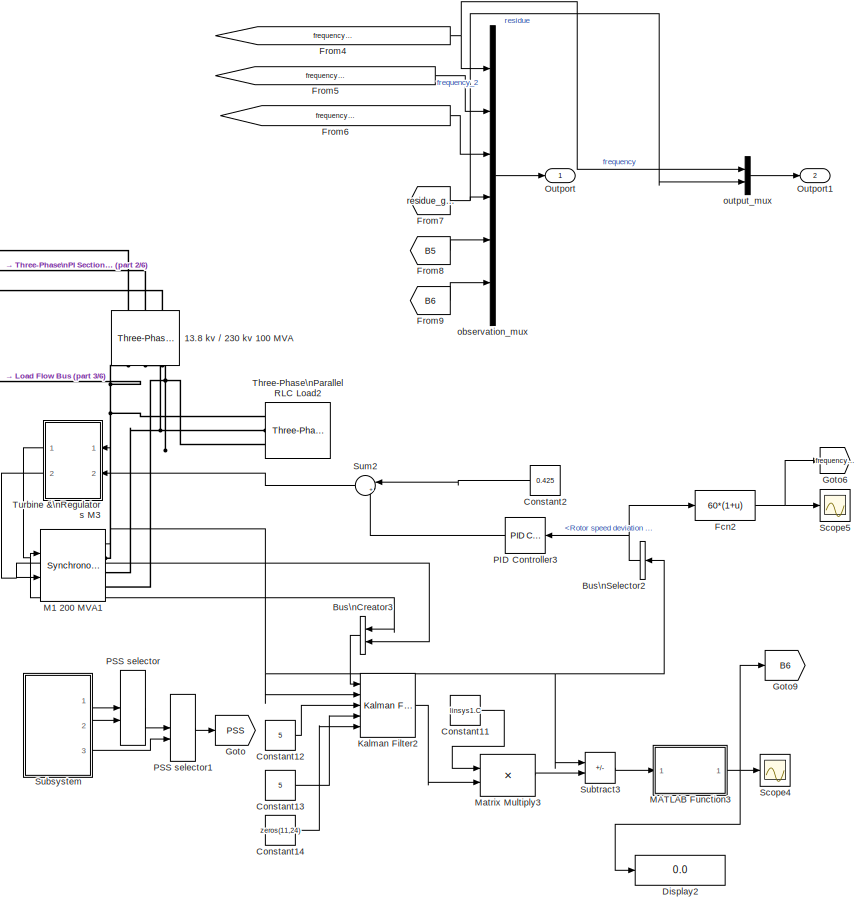
[diagram: root canvas - part 1/6, right side, full height]
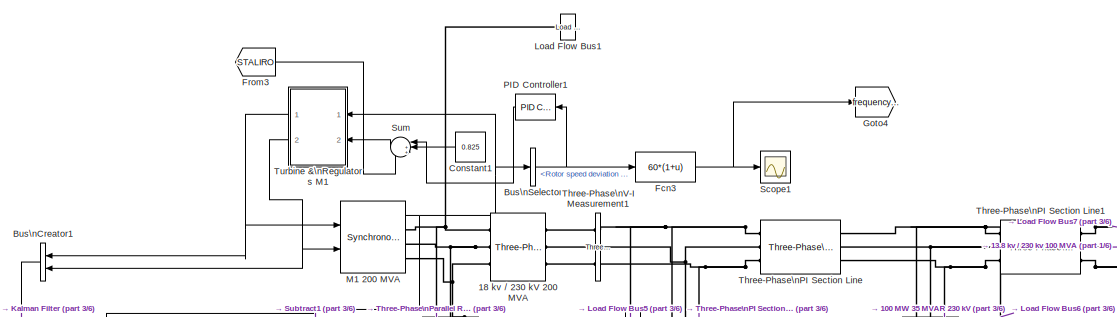
[diagram: root canvas - part 2/6, top center region]
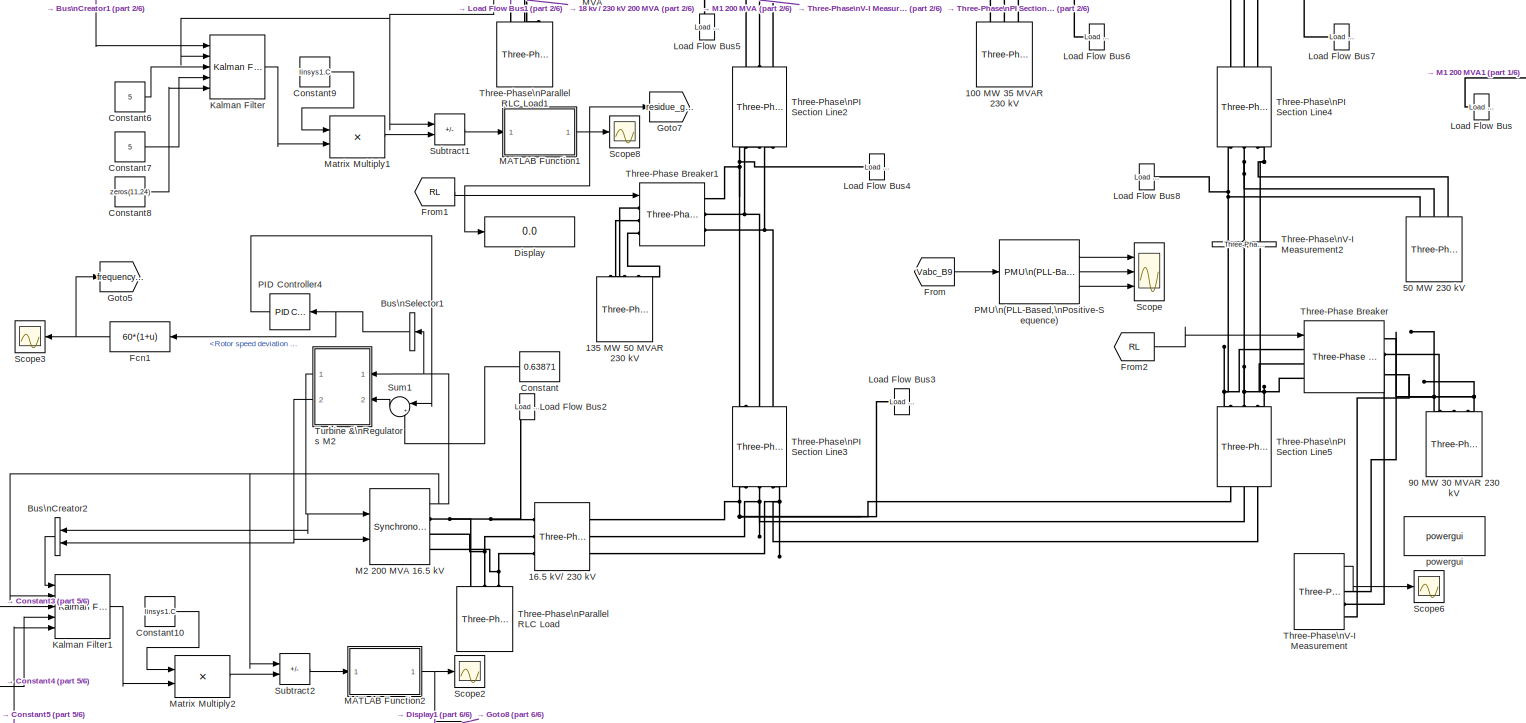
[diagram: root canvas - part 3/6, central region]
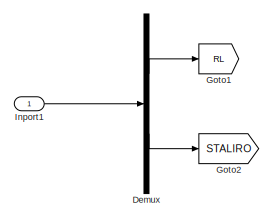
[diagram: root canvas - part 4/6, middle left region]
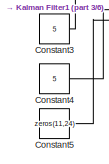
[diagram: root canvas - part 5/6, bottom left region]
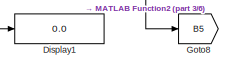
[diagram: root canvas - part 6/6, bottom left region]
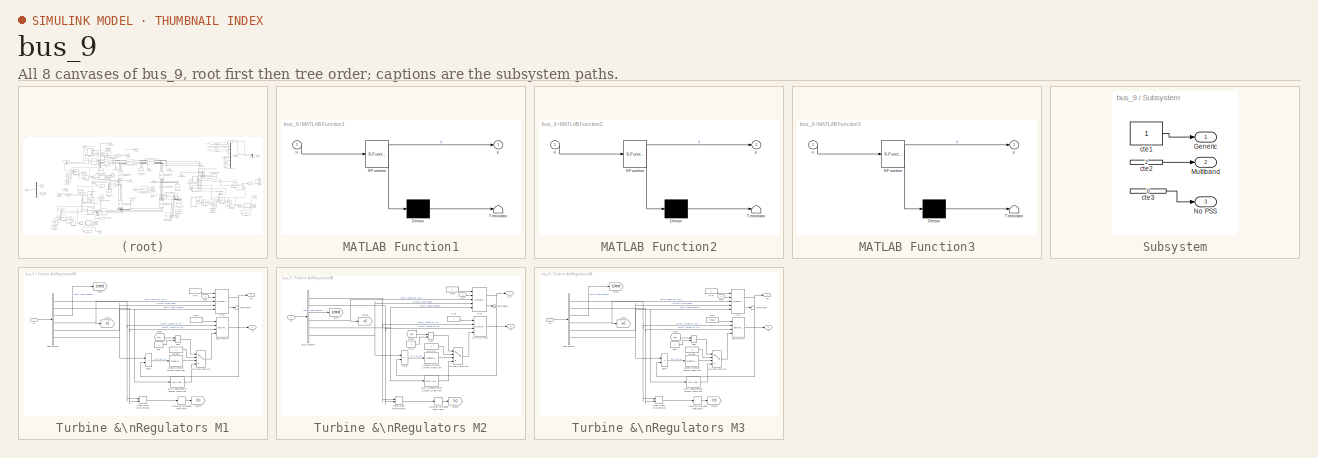
[diagram: thumbnail index - all 8 canvases of the model, root first then tree order]
MODEL bus_9
KIND model
BLOCK [Reference] 100 MW 35 MVAR 230 kV  REF=spsThreePhaseSeriesRLCLoadLib/Three-Phase\nSeries RLC Load
  ActivePower = 100e6
  AttributesFormatString = \\n
  CapacitivePower = 0
  Configuration = Y (grounded)
  InductivePower = 35e6
  LConnTagsString = A|B|C
  LoadType = constant PQ
  Measurements = None
  NameLocation = right
  NominalFrequency = 60
  NominalVoltage = (230000)*0.980041
  Pabc = [10e3 9e3 11e3]
  Pabcp = [10e3 9e3 11e3]
  Ports = [0, 0, 0, 0, 0, 3]
  QCabc = [100 90 110]
  QCabcp = [100 90 110]
  QLabc = [100 90 110]
  QLabcp = [100 90 110]
  SID = 4
  SourceBlock = spsThreePhaseSeriesRLCLoadLib/Three-Phase\nSeries RLC Load
  SourceProductBaseCode = PS
  SourceType = Three-Phase Series RLC Load
  UnbalancedPower = off
  Vabc = [1e3 1e3 1e3]
  Vabcp = [1e3 1e3 1e3]
BLOCK [Reference] 13.8 kv // 230 kv 100 MVA  REF=spsThreePhaseTransformerTwoWindingsLib/Three-Phase\nTransformer\n(Two Windings)
  BreakLoop = off
  CoreType = Three single-phase transformers
  DataFile = 'hysteresis'
  DataType = off
  DiscreteSolver = Trapezoidal iterative
  Hysteresis = off
  InitialFluxes = [ 0.8 , -0.8 , 0.7 ]
  L0 = 0.5
  Lm = 500
  Measurements = None
  NameLocation = left
  NominalPower = [ 100e6 , 60 ]
  Ports = [0, 0, 0, 0, 0, 3, 3]
  RTWMemSecDataConstants = Inherit from model
  RTWMemSecDataInternal = Inherit from model
  RTWMemSecDataParameters = Inherit from model
  RTWMemSecFuncExecute = Inherit from model
  RTWMemSecFuncInitTerm = Inherit from model
  Rm = 500
  SID = 5
  Saturation = [ 0,0 ; 0.0024,1.2 ; 1.0,1.52 ]
  SetInitialFlux = off
  SetSaturation = off
  SourceBlock = spsThreePhaseTransformerTwoWindingsLib/Three-Phase\nTransformer\n(Two Windings)
  SourceProductBaseCode = PS
  SourceType = Three-Phase Transformer (Two Windings)
  TransfoNumber = 1
  UNITS = pu
  Winding1 = [ 13.8e3 , 0.002 , 0.08 ]
  Winding1Connection = Delta (D1)
  Winding2 = [ 230e3 , 0.002 , 0.08 ]
  Winding2Connection = Yg
BLOCK [Reference] 135 MW 50 MVAR 230 kV  REF=spsThreePhaseSeriesRLCLoadLib/Three-Phase\nSeries RLC Load
  ActivePower = 135e6
  AttributesFormatString = \\n
  CapacitivePower = 0
  Configuration = Y (grounded)
  InductivePower = 50e6
  LConnTagsString = A|B|C
  LoadType = constant PQ
  Measurements = None
  NameLocation = right
  NominalFrequency = 60
  NominalVoltage = (230000)*0.972469
  Pabc = [10e3 9e3 11e3]
  Pabcp = [10e3 9e3 11e3]
  Ports = [0, 0, 0, 0, 0, 3]
  QCabc = [100 90 110]
  QCabcp = [100 90 110]
  QLabc = [100 90 110]
  QLabcp = [100 90 110]
  SID = 6
  SourceBlock = spsThreePhaseSeriesRLCLoadLib/Three-Phase\nSeries RLC Load
  SourceProductBaseCode = PS
  SourceType = Three-Phase Series RLC Load
  UnbalancedPower = off
  Vabc = [1e3 1e3 1e3]
  Vabcp = [1e3 1e3 1e3]
BLOCK [Reference] 16.5 kV// 230 kV  REF=spsThreePhaseTransformerTwoWindingsLib/Three-Phase\nTransformer\n(Two Windings)
  BreakLoop = off
  CoreType = Three single-phase transformers
  DataFile = 'hysteresis'
  DataType = off
  DiscreteSolver = Trapezoidal iterative
  Hysteresis = off
  InitialFluxes = [ 0.8 , -0.8 , 0.7 ]
  L0 = 0.5
  Lm = 500
  Measurements = None
  NameLocation = top
  NominalPower = [ 200e6 , 60 ]
  Ports = [0, 0, 0, 0, 0, 3, 3]
  RTWMemSecDataConstants = Inherit from model
  RTWMemSecDataInternal = Inherit from model
  RTWMemSecDataParameters = Inherit from model
  RTWMemSecFuncExecute = Inherit from model
  RTWMemSecFuncInitTerm = Inherit from model
  Rm = 500
  SID = 7
  Saturation = [ 0,0 ; 0.0024,1.2 ; 1.0,1.52 ]
  SetInitialFlux = off
  SetSaturation = off
  SourceBlock = spsThreePhaseTransformerTwoWindingsLib/Three-Phase\nTransformer\n(Two Windings)
  SourceProductBaseCode = PS
  SourceType = Three-Phase Transformer (Two Windings)
  TransfoNumber = 1
  UNITS = pu
  Winding1 = [ 16.5e3 , 0.002 , 0.08 ]
  Winding1Connection = Delta (D1)
  Winding2 = [ 230e3 , 0.002 , 0.08 ]
  Winding2Connection = Yg
BLOCK [Reference] 18 kv // 230 kV 200 MVA  REF=spsThreePhaseTransformerTwoWindingsLib/Three-Phase\nTransformer\n(Two Windings)
  BreakLoop = off
  CoreType = Three single-phase transformers
  DataFile = 'hysteresis'
  DataType = off
  DiscreteSolver = Trapezoidal iterative
  Hysteresis = off
  InitialFluxes = [ 0.8 , -0.8 , 0.7 ]
  L0 = 0.5
  Lm = 500
  Measurements = None
  NominalPower = [ 200e6 , 60 ]
  Ports = [0, 0, 0, 0, 0, 3, 3]
  RTWMemSecDataConstants = Inherit from model
  RTWMemSecDataInternal = Inherit from model
  RTWMemSecDataParameters = Inherit from model
  RTWMemSecFuncExecute = Inherit from model
  RTWMemSecFuncInitTerm = Inherit from model
  Rm = 500
  SID = 8
  Saturation = [ 0,0 ; 0.0024,1.2 ; 1.0,1.52 ]
  SetInitialFlux = off
  SetSaturation = off
  SourceBlock = spsThreePhaseTransformerTwoWindingsLib/Three-Phase\nTransformer\n(Two Windings)
  SourceProductBaseCode = PS
  SourceType = Three-Phase Transformer (Two Windings)
  TransfoNumber = 1
  UNITS = pu
  Winding1 = [ 18e3 , 0.002 , 0.08 ]
  Winding1Connection = Delta (D1)
  Winding2 = [ 230e3 , 0.002 , 0.08 ]
  Winding2Connection = Yg
BLOCK [Reference] 50 MW 230 kV  REF=spsThreePhaseSeriesRLCLoadLib/Three-Phase\nSeries RLC Load
  ActivePower = 50e6
  AttributesFormatString = \\n
  CapacitivePower = 0
  Configuration = Y (grounded)
  InductivePower = 0
  LConnTagsString = A|B|C
  LoadType = constant PQ
  Measurements = None
  NameLocation = right
  NominalFrequency = 60
  NominalVoltage = (230000)*0.978663
  Pabc = [10e3 9e3 11e3]
  Pabcp = [10e3 9e3 11e3]
  Ports = [0, 0, 0, 0, 0, 3]
  QCabc = [100 90 110]
  QCabcp = [100 90 110]
  QLabc = [100 90 110]
  QLabcp = [100 90 110]
  SID = 9
  SourceBlock = spsThreePhaseSeriesRLCLoadLib/Three-Phase\nSeries RLC Load
  SourceProductBaseCode = PS
  SourceType = Three-Phase Series RLC Load
  UnbalancedPower = off
  Vabc = [1e3 1e3 1e3]
  Vabcp = [1e3 1e3 1e3]
BLOCK [Reference] 90 MW 30 MVAR 230 kV  REF=spsThreePhaseSeriesRLCLoadLib/Three-Phase\nSeries RLC Load
  ActivePower = 90e6
  AttributesFormatString = \\n
  CapacitivePower = 0
  Configuration = Y (grounded)
  InductivePower = 30e6
  LConnTagsString = A|B|C
  LoadType = constant PQ
  Measurements = None
  NameLocation = right
  NominalFrequency = 60
  NominalVoltage = (230000)*0.978663
  Pabc = [10e3 9e3 11e3]
  Pabcp = [10e3 9e3 11e3]
  Ports = [0, 0, 0, 0, 0, 3]
  QCabc = [100 90 110]
  QCabcp = [100 90 110]
  QLabc = [100 90 110]
  QLabcp = [100 90 110]
  SID = 10
  SourceBlock = spsThreePhaseSeriesRLCLoadLib/Three-Phase\nSeries RLC Load
  SourceProductBaseCode = PS
  SourceType = Three-Phase Series RLC Load
  UnbalancedPower = off
  Vabc = [1e3 1e3 1e3]
  Vabcp = [1e3 1e3 1e3]
BLOCK [BusCreator] Bus\nCreator1
  DisplayOption = bar
  InheritFromInputs = on
  Inputs = 2
  NameLocation = top
  Ports = [2, 1]
  SID = 11
BLOCK [BusCreator] Bus\nCreator2
  DisplayOption = bar
  InheritFromInputs = on
  Inputs = 2
  NameLocation = top
  Ports = [2, 1]
  SID = 12
BLOCK [BusCreator] Bus\nCreator3
  DisplayOption = bar
  InheritFromInputs = on
  Inputs = 2
  NameLocation = top
  Ports = [2, 1]
  SID = 13
BLOCK [BusSelector] Bus\nSelector
  OutputSignals = Mechanical.Rotor speed deviation  dw (pu)
  Ports = [1, 1]
  SID = 14
BLOCK [BusSelector] Bus\nSelector1
  NameLocation = top
  OutputSignals = Mechanical.Rotor speed deviation  dw (pu)
  Ports = [1, 1]
  SID = 15
BLOCK [BusSelector] Bus\nSelector2
  NameLocation = top
  OutputSignals = Mechanical.Rotor speed deviation  dw (pu)
  Ports = [1, 1]
  SID = 16
BLOCK [Constant] Constant
  NameLocation = top
  SID = 17
  Value = 0.63871
BLOCK [Constant] Constant1
  NameLocation = top
  SID = 18
  Value = 0.825
BLOCK [Constant] Constant10
  SID = 19
  Value = linsys1.C
BLOCK [Constant] Constant11
  SID = 20
  Value = linsys1.C
BLOCK [Constant] Constant12
  SID = 21
  Value = 5
BLOCK [Constant] Constant13
  SID = 22
  Value = 5
BLOCK [Constant] Constant14
  SID = 23
  Value = zeros(11,24)
BLOCK [Constant] Constant2
  NameLocation = top
  SID = 24
  Value = 0.425
BLOCK [Constant] Constant3
  SID = 25
  Value = 5
BLOCK [Constant] Constant4
  SID = 26
  Value = 5
BLOCK [Constant] Constant5
  SID = 27
  Value = zeros(11,24)
BLOCK [Constant] Constant6
  SID = 28
  Value = 5
BLOCK [Constant] Constant7
  SID = 29
  Value = 5
BLOCK [Constant] Constant8
  SID = 30
  Value = zeros(11,24)
BLOCK [Constant] Constant9
  SID = 31
  Value = linsys1.C
BLOCK [Demux] Demux
  Outputs = 2
  Ports = [1, 2]
  SID = 186
BLOCK [Display] Display
  Decimation = 1
  Ports = [1]
  SID = 32
BLOCK [Display] Display1
  Decimation = 1
  Ports = [1]
  SID = 33
BLOCK [Display] Display2
  Decimation = 1
  Ports = [1]
  SID = 34
BLOCK [Fcn] Fcn1
  Expr = 60*(1+u)
  NameLocation = top
  SID = 35
BLOCK [Fcn] Fcn2
  Expr = 60*(1+u)
  SID = 36
BLOCK [Fcn] Fcn3
  Expr = 60*(1+u)
  SID = 37
BLOCK [From] From
  GotoTag = Vabc_B9
  SID = 38
  TagVisibility = global
BLOCK [From] From1
  GotoTag = RL
  SID = 191
BLOCK [From] From2
  GotoTag = RL
  SID = 192
BLOCK [From] From3
  GotoTag = STALIRO
  SID = 193
BLOCK [From] From4
  GotoTag = frequency_gen1
  SID = 201
BLOCK [From] From5
  GotoTag = frequency_gen2
  SID = 202
BLOCK [From] From6
  GotoTag = frequency_gen3
  SID = 203
BLOCK [From] From7
  GotoTag = residue_gen1
  SID = 204
BLOCK [From] From8
  GotoTag = B5
  SID = 205
BLOCK [From] From9
  GotoTag = B6
  SID = 206
BLOCK [Goto] Goto
  GotoTag = PSS
  SID = 39
  TagVisibility = global
BLOCK [Goto] Goto1
  GotoTag = RL
  SID = 187
BLOCK [Goto] Goto2
  GotoTag = STALIRO
  SID = 188
BLOCK [Goto] Goto4
  GotoTag = frequency_gen1
  SID = 194
BLOCK [Goto] Goto5
  GotoTag = frequency_gen2
  SID = 195
BLOCK [Goto] Goto6
  GotoTag = frequency_gen3
  SID = 196
BLOCK [Goto] Goto7
  GotoTag = residue_gen1
  SID = 197
BLOCK [Goto] Goto8
  GotoTag = B5
  SID = 198
BLOCK [Goto] Goto9
  GotoTag = B6
  SID = 200
BLOCK [Inport] Inport1
  SID = 185
BLOCK [Reference] Kalman Filter  REF=ctrlSharedLib/Kalman Filter
  A = linsys1.A
  AddEnablePort = off
  AddInputPort = on
  B = linsys1.B
  C = linsys1.C
  D = linsys1.D
  ExternalReset = None
  G = 1
  H = 0
  InitialEstimateSource = Dialog
  ModelSource = Individual A, B, C, D matrices
  ModelSourceVariable = ss(0.95,1,1,0,1)
  N = 0
  NumberOfInputs = 1
  NumberOfOutputs = 1
  NumberOfProcessNoiseInputs = 1
  NumberOfStates = 1
  OutputEstimatedY = off
  OutputP = off
  P0 = 10
  Ports = [5, 1]
  Q = 0.05
  R = 1
  RTWMemSecDataConstants = Inherit from model
  RTWMemSecDataInternal = Inherit from model
  RTWMemSecDataParameters = Inherit from model
  RTWMemSecFuncExecute = Inherit from model
  RTWMemSecFuncInitTerm = Inherit from model
  SID = 40
  SourceBlock = ctrlSharedLib/Kalman Filter
  SourceProductBaseCode = CT,ID
  SourceType = ctrlKalmanFilter
  TimeDomain = Discrete-Time
  TimeInvariantG = on
  TimeInvariantH = on
  TimeInvariantN = off
  TimeInvariantQ = off
  TimeInvariantR = off
  Ts = -1
  UseCurrentEstimator = on
  UseGH = off
  UseK = off
  X0 = 0
BLOCK [Reference] Kalman Filter1  REF=ctrlSharedLib/Kalman Filter
  A = linsys1.A
  AddEnablePort = off
  AddInputPort = on
  B = linsys1.B
  C = linsys1.C
  D = linsys1.D
  ExternalReset = None
  G = 1
  H = 0
  InitialEstimateSource = Dialog
  ModelSource = Individual A, B, C, D matrices
  ModelSourceVariable = ss(0.95,1,1,0,1)
  N = 0
  NumberOfInputs = 1
  NumberOfOutputs = 1
  NumberOfProcessNoiseInputs = 1
  NumberOfStates = 1
  OutputEstimatedY = off
  OutputP = off
  P0 = 10
  Ports = [5, 1]
  Q = 0.05
  R = 1
  RTWMemSecDataConstants = Inherit from model
  RTWMemSecDataInternal = Inherit from model
  RTWMemSecDataParameters = Inherit from model
  RTWMemSecFuncExecute = Inherit from model
  RTWMemSecFuncInitTerm = Inherit from model
  SID = 41
  SourceBlock = ctrlSharedLib/Kalman Filter
  SourceProductBaseCode = CT,ID
  SourceType = ctrlKalmanFilter
  TimeDomain = Discrete-Time
  TimeInvariantG = on
  TimeInvariantH = on
  TimeInvariantN = off
  TimeInvariantQ = off
  TimeInvariantR = off
  Ts = -1
  UseCurrentEstimator = on
  UseGH = off
  UseK = off
  X0 = 0
BLOCK [Reference] Kalman Filter2  REF=ctrlSharedLib/Kalman Filter
  A = linsys1.A
  AddEnablePort = off
  AddInputPort = on
  B = linsys1.B
  C = linsys1.C
  D = linsys1.D
  ExternalReset = None
  G = 1
  H = 0
  InitialEstimateSource = Dialog
  ModelSource = Individual A, B, C, D matrices
  ModelSourceVariable = ss(0.95,1,1,0,1)
  N = 0
  NumberOfInputs = 1
  NumberOfOutputs = 1
  NumberOfProcessNoiseInputs = 1
  NumberOfStates = 1
  OutputEstimatedY = off
  OutputP = off
  P0 = 10
  Ports = [5, 1]
  Q = 0.05
  R = 1
  RTWMemSecDataConstants = Inherit from model
  RTWMemSecDataInternal = Inherit from model
  RTWMemSecDataParameters = Inherit from model
  RTWMemSecFuncExecute = Inherit from model
  RTWMemSecFuncInitTerm = Inherit from model
  SID = 42
  SourceBlock = ctrlSharedLib/Kalman Filter
  SourceProductBaseCode = CT,ID
  SourceType = ctrlKalmanFilter
  TimeDomain = Discrete-Time
  TimeInvariantG = on
  TimeInvariantH = on
  TimeInvariantN = off
  TimeInvariantQ = off
  TimeInvariantR = off
  Ts = -1
  UseCurrentEstimator = on
  UseGH = off
  UseK = off
  X0 = 0
BLOCK [Reference] Load Flow Bus  REF=spsLoadFlowBusLib/Load Flow Bus
  AttributesFormatString = %<ID>\n%<Vbase>V\n%<VLF>pu\n%<angleLF>deg.
  Connectors = on one side
  ID = BUS_3
  LConnTagsString = a
  Phases = single
  Ports = [0, 0, 0, 0, 0, 1]
  SID = 43
  SourceBlock = spsLoadFlowBusLib/Load Flow Bus
  SourceProductBaseCode = PS
  SourceType = Load Flow Bus
  VLF = 1
  VLFb = 1
  VLFc = 1
  Vangle = 0
  Vbase = 13.8e3
  Vref = 1
  angleLF = 3.115
  angleLFb = 0
  angleLFc = 0
BLOCK [Reference] Load Flow Bus1  REF=spsLoadFlowBusLib/Load Flow Bus
  AttributesFormatString = %<ID>\n%<Vbase>V\n%<VLF>pu\n%<angleLF>deg.
  Connectors = on one side
  ID = BUS_2
  LConnTagsString = a
  Phases = single
  Ports = [0, 0, 0, 0, 0, 1]
  SID = 44
  SourceBlock = spsLoadFlowBusLib/Load Flow Bus
  SourceProductBaseCode = PS
  SourceType = Load Flow Bus
  VLF = 1
  VLFb = 1
  VLFc = 1
  Vangle = 0
  Vbase = 18e3
  Vref = 1
  angleLF = 3.878
  angleLFb = 0
  angleLFc = 0
BLOCK [Reference] Load Flow Bus2  REF=spsLoadFlowBusLib/Load Flow Bus
  AttributesFormatString = %<ID>\n%<Vbase>V\n%<VLF>pu\n%<angleLF>deg.
  Connectors = on one side
  ID = BUS_1
  LConnTagsString = a
  Phases = single
  Ports = [0, 0, 0, 0, 0, 1]
  SID = 45
  SourceBlock = spsLoadFlowBusLib/Load Flow Bus
  SourceProductBaseCode = PS
  SourceType = Load Flow Bus
  VLF = 1
  VLFb = 1
  VLFc = 1
  Vangle = 0
  Vbase = 16.5e3
  Vref = 1
  angleLF = 0
  angleLFb = 0
  angleLFc = 0
BLOCK [Reference] Load Flow Bus3  REF=spsLoadFlowBusLib/Load Flow Bus
  AttributesFormatString = %<ID>\n%<Vbase>V\n%<VLF>pu\n%<angleLF>deg.
  Connectors = on one side
  ID = BUS_4
  LConnTagsString = a
  Phases = single
  Ports = [0, 0, 0, 0, 0, 1]
  SID = 46
  SourceBlock = spsLoadFlowBusLib/Load Flow Bus
  SourceProductBaseCode = PS
  SourceType = Load Flow Bus
  VLF = 0.9805
  VLFb = 1
  VLFc = 1
  Vangle = 0
  Vbase = 230e3
  Vref = 1
  angleLF = 24.06
  angleLFb = 0
  angleLFc = 0
BLOCK [Reference] Load Flow Bus4  REF=spsLoadFlowBusLib/Load Flow Bus
  AttributesFormatString = %<ID>\n%<Vbase>V\n%<VLF>pu\n%<angleLF>deg.
  Connectors = on one side
  ID = BUS_5
  LConnTagsString = a
  Phases = single
  Ports = [0, 0, 0, 0, 0, 1]
  SID = 47
  SourceBlock = spsLoadFlowBusLib/Load Flow Bus
  SourceProductBaseCode = PS
  SourceType = Load Flow Bus
  VLF = 0.9725
  VLFb = 1
  VLFc = 1
  Vangle = 0
  Vbase = 230e3
  Vref = 1
  angleLF = 23
  angleLFb = 0
  angleLFc = 0
BLOCK [Reference] Load Flow Bus5  REF=spsLoadFlowBusLib/Load Flow Bus
  AttributesFormatString = %<ID>\n%<Vbase>V\n%<VLF>pu\n%<angleLF>deg.
  Connectors = on one side
  ID = BUS_6
  LConnTagsString = a
  Phases = single
  Ports = [0, 0, 0, 0, 0, 1]
  SID = 48
  SourceBlock = spsLoadFlowBusLib/Load Flow Bus
  SourceProductBaseCode = PS
  SourceType = Load Flow Bus
  VLF = 0.9834
  VLFb = 1
  VLFc = 1
  Vangle = 0
  Vbase = 230e3
  Vref = 1
  angleLF = 26.21
  angleLFb = 0
  angleLFc = 0
BLOCK [Reference] Load Flow Bus6  REF=spsLoadFlowBusLib/Load Flow Bus
  AttributesFormatString = %<ID>\n%<Vbase>V\n%<VLF>pu\n%<angleLF>deg.
  Connectors = on one side
  ID = BUS_7
  LConnTagsString = a
  Phases = single
  Ports = [0, 0, 0, 0, 0, 1]
  SID = 49
  SourceBlock = spsLoadFlowBusLib/Load Flow Bus
  SourceProductBaseCode = PS
  SourceType = Load Flow Bus
  VLF = 0.98
  VLFb = 1
  VLFc = 1
  Vangle = 0
  Vbase = 230e3
  Vref = 1
  angleLF = 24.57
  angleLFb = 0
  angleLFc = 0
BLOCK [Reference] Load Flow Bus7  REF=spsLoadFlowBusLib/Load Flow Bus
  AttributesFormatString = %<ID>\n%<Vbase>V\n%<VLF>pu\n%<angleLF>deg.
  Connectors = on one side
  ID = BUS_8
  LConnTagsString = a
  Phases = single
  Ports = [0, 0, 0, 0, 0, 1]
  SID = 50
  SourceBlock = spsLoadFlowBusLib/Load Flow Bus
  SourceProductBaseCode = PS
  SourceType = Load Flow Bus
  VLF = 0.988
  VLFb = 1
  VLFc = 1
  Vangle = 0
  Vbase = 230e3
  Vref = 1
  angleLF = 25.24
  angleLFb = 0
  angleLFc = 0
BLOCK [Reference] Load Flow Bus8  REF=spsLoadFlowBusLib/Load Flow Bus
  AttributesFormatString = %<ID>\n%<Vbase>V\n%<VLF>pu\n%<angleLF>deg.
  Connectors = on one side
  ID = BUS_9
  LConnTagsString = a
  NameLocation = top
  Phases = single
  Ports = [0, 0, 0, 0, 0, 1]
  SID = 51
  SourceBlock = spsLoadFlowBusLib/Load Flow Bus
  SourceProductBaseCode = PS
  SourceType = Load Flow Bus
  VLF = 0.9787
  VLFb = 1
  VLFc = 1
  Vangle = 0
  Vbase = 230e3
  Vref = 1
  angleLF = 22.61
  angleLFb = 0
  angleLFc = 0
BLOCK [Reference] M1 200 MVA  REF=spsSynchronousMachinepuStandardLib/Synchronous Machine\npu Standard
  AttributesFormatString = \\n\\n
  BusType = PV
  InitialConditions = [0 -66.0372 0.836682 0.836682 0.836682 -5.70736 -125.707 114.293 1.48174]
  IterativeDiscreteModel = Trapezoidal non iterative
  IterativeModel = Trapezoidal non iterative
  LoadFlowParameters = [1 950000000 0 0]
  MeasurementBus = off
  Mechanical = [ 3.7 0  32]
  MechanicalLoad = Mechanical power Pm
  NominalParameters = [200E6  18000   60 ]
  PLF = 0
  PolePairs = 32
  Ports = [2, 1, 0, 0, 0, 0, 3]
  Pref = 165e6
  PresetModel = No
  QLF = 0
  Qmax = Inf
  Qmin = -Inf
  Qref = 0
  RTWMemSecDataConstants = Inherit from model
  RTWMemSecDataInternal = Inherit from model
  RTWMemSecDataParameters = Inherit from model
  RTWMemSecFuncExecute = Inherit from model
  RTWMemSecFuncInitTerm = Inherit from model
  Reactances1 = [ 31 32 33 34 35 36 37 ]
  Reactances2 = [ 1.305, 0.296, 0.252, 0.474, 0.243, 0.18 ]
  RotorType = Salient-pole
  SID = 52
  Saturation = [0.6404,0.7127,0.8441,0.9214,0.9956,1.082,1.19,1.316,1.457;0.7,0.7698,0.8872,0.9466,0.9969,1.046,1.1,1.151,1.201]
  SetSaturation = off
  ShowDetailedParameters = on
  SourceBlock = spsSynchronousMachinepuStandardLib/Synchronous Machine\npu Standard
  SourceProductName = Specialized Power Systems
  SourceType = Synchronous Machine
  StatorResistance = 2.8544e-3
  TimeConstants1 = []
  TimeConstants2 = []
  TimeConstants3 = []
  TimeConstants4 = []
  TimeConstants5 = [ 1.01, 0.053, 0.1 ]
  TimeConstants6 = []
  TimeConstants7 = []
  TimeConstants8 = []
  TsBlock = -1
  TsPowergui = 0
  Units = per unit standard parameters
  dAxisTimeConstants = Short-circuit
  qAxisTimeConstants = Open-circuit
BLOCK [Reference] M1 200 MVA1  REF=spsSynchronousMachinepuStandardLib/Synchronous Machine\npu Standard
  AttributesFormatString = \\n\\n
  BusType = PV
  InitialConditions = [0 -68.7855 0.55925 0.55925 0.55925 -4.47761 -124.478 115.522 1.04657]
  IterativeDiscreteModel = Trapezoidal non iterative
  IterativeModel = Trapezoidal non iterative
  LoadFlowParameters = [1 950000000 0 0]
  MeasurementBus = off
  Mechanical = [ 3.7 0  32]
  MechanicalLoad = Mechanical power Pm
  NominalParameters = [200E6  18000   60 ]
  PLF = 0
  PolePairs = 32
  Ports = [2, 1, 0, 0, 0, 0, 3]
  Pref = 85e6
  PresetModel = No
  QLF = 0
  Qmax = Inf
  Qmin = -Inf
  Qref = 0
  RTWMemSecDataConstants = Inherit from model
  RTWMemSecDataInternal = Inherit from model
  RTWMemSecDataParameters = Inherit from model
  RTWMemSecFuncExecute = Inherit from model
  RTWMemSecFuncInitTerm = Inherit from model
  Reactances1 = [ 31 32 33 34 35 36 37 ]
  Reactances2 = [ 1.305, 0.296, 0.252, 0.474, 0.243, 0.18 ]
  RotorType = Salient-pole
  SID = 53
  Saturation = [0.6404,0.7127,0.8441,0.9214,0.9956,1.082,1.19,1.316,1.457;0.7,0.7698,0.8872,0.9466,0.9969,1.046,1.1,1.151,1.201]
  SetSaturation = off
  ShowDetailedParameters = on
  SourceBlock = spsSynchronousMachinepuStandardLib/Synchronous Machine\npu Standard
  SourceProductName = Specialized Power Systems
  SourceType = Synchronous Machine
  StatorResistance = 2.8544e-3
  TimeConstants1 = []
  TimeConstants2 = []
  TimeConstants3 = []
  TimeConstants4 = []
  TimeConstants5 = [ 1.01, 0.053, 0.1 ]
  TimeConstants6 = []
  TimeConstants7 = []
  TimeConstants8 = []
  TsBlock = -1
  TsPowergui = 0
  Units = per unit standard parameters
  dAxisTimeConstants = Short-circuit
  qAxisTimeConstants = Open-circuit
BLOCK [Reference] M2 200 MVA 16.5 kV  REF=spsSynchronousMachinepuStandardLib/Synchronous Machine\npu Standard
  AttributesFormatString = \\n\\n
  BusType = swing
  InitialConditions = [0 -74.1936 0.653801 0.653801 0.653801 -12.3345 -132.335 107.665 1.36624]
  IterativeDiscreteModel = Trapezoidal non iterative
  IterativeModel = Trapezoidal non iterative
  LoadFlowParameters = [2 4000000000 0 0]
  MeasurementBus = off
  Mechanical = [ 3.7 0  32]
  MechanicalLoad = Mechanical power Pm
  NominalParameters = [200E6  16500   60 ]
  PLF = 0
  PolePairs = 32
  Ports = [2, 1, 0, 0, 0, 0, 3]
  Pref = 0
  PresetModel = No
  QLF = 0
  Qmax = Inf
  Qmin = -Inf
  Qref = 0
  RTWMemSecDataConstants = Inherit from model
  RTWMemSecDataInternal = Inherit from model
  RTWMemSecDataParameters = Inherit from model
  RTWMemSecFuncExecute = Inherit from model
  RTWMemSecFuncInitTerm = Inherit from model
  Reactances1 = [ 31 32 33 34 35 36 37 ]
  Reactances2 = [ 1.305, 0.296, 0.252, 0.474, 0.243, 0.18 ]
  RotorType = Salient-pole
  SID = 54
  Saturation = [0.6404,0.7127,0.8441,0.9214,0.9956,1.082,1.19,1.316,1.457;0.7,0.7698,0.8872,0.9466,0.9969,1.046,1.1,1.151,1.201]
  SetSaturation = off
  ShowDetailedParameters = on
  SourceBlock = spsSynchronousMachinepuStandardLib/Synchronous Machine\npu Standard
  SourceProductName = Specialized Power Systems
  SourceType = Synchronous Machine
  StatorResistance = 2.8544e-3
  TimeConstants1 = []
  TimeConstants2 = []
  TimeConstants3 = []
  TimeConstants4 = []
  TimeConstants5 = [ 1.01, 0.053, 0.1 ]
  TimeConstants6 = []
  TimeConstants7 = []
  TimeConstants8 = []
  TsBlock = -1
  TsPowergui = 0
  Units = per unit standard parameters
  dAxisTimeConstants = Short-circuit
  qAxisTimeConstants = Open-circuit
BLOCK [SubSystem] MATLAB Function1
  ErrorFcn = Stateflow.Translate.translate
  PermitHierarchicalResolution = ExplicitOnly
  Ports = [1, 1]
  RequestExecContextInheritance = off
  SFBlockType = MATLAB Function
  SID = 55
  TreatAsAtomicUnit = on
BLOCK [Demux] MATLAB Function1/ Demux 
  Outputs = 1
  Ports = [1, 1]
  SID = 55::29
BLOCK [S-Function] MATLAB Function1/ SFunction 
  EnableBusSupport = on
  FunctionName = sf_sfun
  PortCounts = [1 2]
  Ports = [1, 2]
  SFcnIsStateOwnerBlock = off
  SFunctionDeploymentMode = off
  SID = 55::28
  Tag = Stateflow S-Function 1
BLOCK [Terminator] MATLAB Function1/ Terminator 
  SID = 55::30
BLOCK [Inport] MATLAB Function1/u
  SID = 55::1
BLOCK [Outport] MATLAB Function1/y
  SID = 55::5
  VectorParamsAs1DForOutWhenUnconnected = off
BLOCK [SubSystem] MATLAB Function2
  ErrorFcn = Stateflow.Translate.translate
  PermitHierarchicalResolution = ExplicitOnly
  Ports = [1, 1]
  RequestExecContextInheritance = off
  SFBlockType = MATLAB Function
  SID = 56
  TreatAsAtomicUnit = on
BLOCK [Demux] MATLAB Function2/ Demux 
  Outputs = 1
  Ports = [1, 1]
  SID = 56::29
BLOCK [S-Function] MATLAB Function2/ SFunction 
  EnableBusSupport = on
  FunctionName = sf_sfun
  PortCounts = [1 2]
  Ports = [1, 2]
  SFcnIsStateOwnerBlock = off
  SFunctionDeploymentMode = off
  SID = 56::28
  Tag = Stateflow S-Function 2
BLOCK [Terminator] MATLAB Function2/ Terminator 
  SID = 56::30
BLOCK [Inport] MATLAB Function2/u
  SID = 56::1
BLOCK [Outport] MATLAB Function2/y
  SID = 56::5
  VectorParamsAs1DForOutWhenUnconnected = off
BLOCK [SubSystem] MATLAB Function3
  ErrorFcn = Stateflow.Translate.translate
  PermitHierarchicalResolution = ExplicitOnly
  Ports = [1, 1]
  RequestExecContextInheritance = off
  SFBlockType = MATLAB Function
  SID = 57
  TreatAsAtomicUnit = on
BLOCK [Demux] MATLAB Function3/ Demux 
  Outputs = 1
  Ports = [1, 1]
  SID = 57::29
BLOCK [S-Function] MATLAB Function3/ SFunction 
  EnableBusSupport = on
  FunctionName = sf_sfun
  PortCounts = [1 2]
  Ports = [1, 2]
  SFcnIsStateOwnerBlock = off
  SFunctionDeploymentMode = off
  SID = 57::28
  Tag = Stateflow S-Function 3
BLOCK [Terminator] MATLAB Function3/ Terminator 
  SID = 57::30
BLOCK [Inport] MATLAB Function3/u
  SID = 57::1
BLOCK [Outport] MATLAB Function3/y
  SID = 57::5
  VectorParamsAs1DForOutWhenUnconnected = off
BLOCK [Product] Matrix Multiply1
  Multiplication = Matrix(*)
  Ports = [2, 1]
  SID = 58
BLOCK [Product] Matrix Multiply2
  Multiplication = Matrix(*)
  Ports = [2, 1]
  SID = 59
BLOCK [Product] Matrix Multiply3
  Multiplication = Matrix(*)
  Ports = [2, 1]
  SID = 60
BLOCK [Outport] Outport
  SID = 208
BLOCK [Outport] Outport1
  Port = 2
  SID = 213
BLOCK [Reference] PID Controller1  REF=pid_lib/PID Controller
  AWVariant = Passthrough
  AntiWindupMode = none
  Controller = PID
  ControllerParametersSource = internal
  D = -100
  DGainOutDataTypeStr = Inherit: Inherit via internal rule
  DOutMax = []
  DOutMin = []
  DParamDataTypeStr = Inherit: Inherit via internal rule
  DParamMax = []
  DParamMin = []
  DProdOutDataTypeStr = Inherit: Inherit via internal rule
  DVariant = InternalParameters
  DerivativeFilterVariant = ForwardEulerFilter
  DifferentiatorICPrevScaledInput = 0
  DifferentiatorOutDataTypeStr = Inherit: Inherit via internal rule
  DifferentiatorOutMax = []
  DifferentiatorOutMin = []
  DivideOutDataTypeStr = Inherit: Inherit via internal rule
  DivideOutMax = []
  DivideOutMin = []
  ExternalReset = none
  ExternalResetVariant = Disabled
  ExternalSaturationOutDataTypeStr = Inherit: Same as second input
  FdbkBlocksVariant = Forward
  FilterContinuousStateAttributes = ''
  FilterDiffDenAccumDataTypeStr = Inherit: Inherit via internal rule
  FilterDiffDenProductOutputDataTypeStr = Inherit: Inherit via internal rule
  FilterDiffNumAccumDataTypeStr = Inherit: Inherit via internal rule
  FilterDiffNumProductOutputDataTypeStr = Inherit: Inherit via internal rule
  FilterDiffOutCoefDataTypeStr = Inherit: Inherit via internal rule
  FilterDiffOutCoefMax = []
  FilterDiffOutCoefMin = []
  FilterICVariant = InternalICsFilter
  FilterMethod = Forward Euler
  FilterOutDataTypeStr = Inherit: Inherit via internal rule
  FilterOutMax = []
  FilterOutMin = []
  FilterRTWStateStorageClass = Auto
  FilterStateMustResolveToSignalObject = off
  Form = Parallel
  I = 0
  IGainOutDataTypeStr = Inherit: Inherit via internal rule
  IOutMax = []
  IOutMin = []
  IParamDataTypeStr = Inherit: Inherit via internal rule
  IParamMax = []
  IParamMin = []
  IProdOutDataTypeStr = Inherit: Inherit via internal rule
  IVariant = InternalParameters
  IdealPFdbkVariant = Disabled
  IdealPVariant = Disabled
  IgnoreLimit = off
  InitialConditionForFilter = 0
  InitialConditionForIntegrator = 0
  InitialConditionSetting = Auto
  InitialConditionSource = internal
  IntegratorContinuousStateAttributes = ''
  IntegratorICVariant = InternalICs
  IntegratorMethod = Forward Euler
  IntegratorOutDataTypeStr = Inherit: Inherit via internal rule
  IntegratorOutMax = []
  IntegratorOutMin = []
  IntegratorRTWStateStorageClass = Auto
  IntegratorStateMustResolveToSignalObject = off
  IntegratorVariant = Discrete
  Kb = 1
  KbOutDataTypeStr = Inherit: Inherit via internal rule
  KbOutMax = []
  KbOutMin = []
  KbParamDataTypeStr = Inherit: Inherit via internal rule
  KbParamMax = []
  KbParamMin = []
  Kt = 1
  KtOutDataTypeStr = Inherit: Inherit via internal rule
  KtOutMax = []
  KtOutMin = []
  KtParamDataTypeStr = Inherit: Inherit via internal rule
  KtParamMax = []
  KtParamMin = []
  LimitOutput = off
  LinearizeAsGain = on
  LockScale = off
  LowerSaturationLimit = -inf
  N = 100
  NCopyVariant = Disabled
  NGainOutDataTypeStr = Inherit: Inherit via internal rule
  NOutMax = []
  NOutMin = []
  NParamDataTypeStr = Inherit: Inherit via internal rule
  NParamMax = []
  NParamMin = []
  NProdOutDataTypeStr = Inherit: Inherit via internal rule
  NTsProdOutDataTypeStr = Inherit: Inherit via internal rule
  NTsProdOutMax = []
  NTsProdOutMin = []
  NVariant = InternalParameters
  NameLocation = top
  P = 0
  PCopyVariant = Disabled
  PGainOutDataTypeStr = Inherit: Inherit via internal rule
  POutMax = []
  POutMin = []
  PParamDataTypeStr = Inherit: Inherit via internal rule
  PParamMax = []
  PParamMin = []
  PProdOutDataTypeStr = Inherit: Inherit via internal rule
  ParallelPVariant = InternalParameters
  Ports = [1, 1]
  RTWMemSecDataConstants = Inherit from model
  RTWMemSecDataInternal = Inherit from model
  RTWMemSecDataParameters = Inherit from model
  RTWMemSecFuncExecute = Inherit from model
  RTWMemSecFuncInitTerm = Inherit from model
  ReciprocalOutDataTypeStr = Inherit: Inherit via internal rule
  ReciprocalOutMax = []
  ReciprocalOutMin = []
  RndMeth = Floor
  SID = 182
  SampleTime = -1
  SatFdbkVariant = Disabled
  SatLimitsSource = internal
  SatVariant = Disabled
  SaturateOnIntegerOverflow = off
  SaturationOutDataTypeStr = Inherit: Same as input
  SaturationOutMax = []
  SaturationOutMin = []
  SourceBlock = pid_lib/PID Controller
  SourceProductBaseCode = SL
  SourceType = PID 1dof
  SumAccumDataTypeStr = Inherit: Inherit via internal rule
  SumDAccumDataTypeStr = Inherit: Inherit via internal rule
  SumDOutDataTypeStr = Inherit: Inherit via internal rule
  SumDOutMax = []
  SumDOutMin = []
  SumDenAccumDataTypeStr = Inherit: Inherit via internal rule
  SumDenOutDataTypeStr = Inherit: Inherit via internal rule
  SumDenOutMax = []
  SumDenOutMin = []
  SumFdbkVariant = Disabled
  SumI1AccumDataTypeStr = Inherit: Inherit via internal rule
  SumI1OutDataTypeStr = Inherit: Inherit via internal rule
  SumI1OutMax = []
  SumI1OutMin = []
  SumI2AccumDataTypeStr = Inherit: Inherit via internal rule
  SumI2OutDataTypeStr = Inherit: Inherit via internal rule
  SumI2OutMax = []
  SumI2OutMin = []
  SumI3AccumDataTypeStr = Inherit: Inherit via internal rule
  SumI3OutDataTypeStr = Inherit: Inherit via internal rule
  SumI3OutMax = []
  SumI3OutMin = []
  SumI4AccumDataTypeStr = Inherit: Inherit via internal rule
  SumI4OutDataTypeStr = Inherit: Inherit via internal rule
  SumI4OutMax = []
  SumI4OutMin = []
  SumNumAccumDataTypeStr = Inherit: Inherit via internal rule
  SumNumOutDataTypeStr = Inherit: Inherit via internal rule
  SumNumOutMax = []
  SumNumOutMin = []
  SumOutDataTypeStr = Inherit: Inherit via internal rule
  SumOutMax = []
  SumOutMin = []
  SumVariant = Sum_PID
  TRSumVariant = Passthrough
  TRVariant = Disabled
  TimeDomain = Discrete-time
  TrackingMode = off
  TsampFilterVariant = InternalTs
  TsampIntegralVariant = Passthrough
  TsampNgainVariant = Passthrough
  TunerSelectOption = Frequency Response Based
  UdiffTsProdOutDataTypeStr = Inherit: Inherit via internal rule
  UdiffTsProdOutMax = []
  UdiffTsProdOutMin = []
  UintegralTsProdOutDataTypeStr = Inherit: Inherit via internal rule
  UintegralTsProdOutMax = []
  UintegralTsProdOutMin = []
  UngainTsProdOutDataTypeStr = Inherit: Inherit via internal rule
  UngainTsProdOutMax = []
  UngainTsProdOutMin = []
  UpperSaturationLimit = inf
  UseExternalTs = off
  UseFilter = on
  ZeroCross = on
BLOCK [Reference] PID Controller3  REF=pid_lib/PID Controller
  AWVariant = Passthrough
  AntiWindupMode = none
  Controller = PID
  ControllerParametersSource = internal
  D = -100
  DGainOutDataTypeStr = Inherit: Inherit via internal rule
  DOutMax = []
  DOutMin = []
  DParamDataTypeStr = Inherit: Inherit via internal rule
  DParamMax = []
  DParamMin = []
  DProdOutDataTypeStr = Inherit: Inherit via internal rule
  DVariant = InternalParameters
  DerivativeFilterVariant = ForwardEulerFilter
  DifferentiatorICPrevScaledInput = 0
  DifferentiatorOutDataTypeStr = Inherit: Inherit via internal rule
  DifferentiatorOutMax = []
  DifferentiatorOutMin = []
  DivideOutDataTypeStr = Inherit: Inherit via internal rule
  DivideOutMax = []
  DivideOutMin = []
  ExternalReset = none
  ExternalResetVariant = Disabled
  ExternalSaturationOutDataTypeStr = Inherit: Same as second input
  FdbkBlocksVariant = Forward
  FilterContinuousStateAttributes = ''
  FilterDiffDenAccumDataTypeStr = Inherit: Inherit via internal rule
  FilterDiffDenProductOutputDataTypeStr = Inherit: Inherit via internal rule
  FilterDiffNumAccumDataTypeStr = Inherit: Inherit via internal rule
  FilterDiffNumProductOutputDataTypeStr = Inherit: Inherit via internal rule
  FilterDiffOutCoefDataTypeStr = Inherit: Inherit via internal rule
  FilterDiffOutCoefMax = []
  FilterDiffOutCoefMin = []
  FilterICVariant = InternalICsFilter
  FilterMethod = Forward Euler
  FilterOutDataTypeStr = Inherit: Inherit via internal rule
  FilterOutMax = []
  FilterOutMin = []
  FilterRTWStateStorageClass = Auto
  FilterStateMustResolveToSignalObject = off
  Form = Parallel
  I = 0
  IGainOutDataTypeStr = Inherit: Inherit via internal rule
  IOutMax = []
  IOutMin = []
  IParamDataTypeStr = Inherit: Inherit via internal rule
  IParamMax = []
  IParamMin = []
  IProdOutDataTypeStr = Inherit: Inherit via internal rule
  IVariant = InternalParameters
  IdealPFdbkVariant = Disabled
  IdealPVariant = Disabled
  IgnoreLimit = off
  InitialConditionForFilter = 0
  InitialConditionForIntegrator = 0
  InitialConditionSetting = Auto
  InitialConditionSource = internal
  IntegratorContinuousStateAttributes = ''
  IntegratorICVariant = InternalICs
  IntegratorMethod = Forward Euler
  IntegratorOutDataTypeStr = Inherit: Inherit via internal rule
  IntegratorOutMax = []
  IntegratorOutMin = []
  IntegratorRTWStateStorageClass = Auto
  IntegratorStateMustResolveToSignalObject = off
  IntegratorVariant = Discrete
  Kb = 1
  KbOutDataTypeStr = Inherit: Inherit via internal rule
  KbOutMax = []
  KbOutMin = []
  KbParamDataTypeStr = Inherit: Inherit via internal rule
  KbParamMax = []
  KbParamMin = []
  Kt = 1
  KtOutDataTypeStr = Inherit: Inherit via internal rule
  KtOutMax = []
  KtOutMin = []
  KtParamDataTypeStr = Inherit: Inherit via internal rule
  KtParamMax = []
  KtParamMin = []
  LimitOutput = off
  LinearizeAsGain = on
  LockScale = off
  LowerSaturationLimit = -inf
  N = 100
  NCopyVariant = Disabled
  NGainOutDataTypeStr = Inherit: Inherit via internal rule
  NOutMax = []
  NOutMin = []
  NParamDataTypeStr = Inherit: Inherit via internal rule
  NParamMax = []
  NParamMin = []
  NProdOutDataTypeStr = Inherit: Inherit via internal rule
  NTsProdOutDataTypeStr = Inherit: Inherit via internal rule
  NTsProdOutMax = []
  NTsProdOutMin = []
  NVariant = InternalParameters
  NameLocation = top
  P = 0
  PCopyVariant = Disabled
  PGainOutDataTypeStr = Inherit: Inherit via internal rule
  POutMax = []
  POutMin = []
  PParamDataTypeStr = Inherit: Inherit via internal rule
  PParamMax = []
  PParamMin = []
  PProdOutDataTypeStr = Inherit: Inherit via internal rule
  ParallelPVariant = InternalParameters
  Ports = [1, 1]
  RTWMemSecDataConstants = Inherit from model
  RTWMemSecDataInternal = Inherit from model
  RTWMemSecDataParameters = Inherit from model
  RTWMemSecFuncExecute = Inherit from model
  RTWMemSecFuncInitTerm = Inherit from model
  ReciprocalOutDataTypeStr = Inherit: Inherit via internal rule
  ReciprocalOutMax = []
  ReciprocalOutMin = []
  RndMeth = Floor
  SID = 181
  SampleTime = -1
  SatFdbkVariant = Disabled
  SatLimitsSource = internal
  SatVariant = Disabled
  SaturateOnIntegerOverflow = off
  SaturationOutDataTypeStr = Inherit: Same as input
  SaturationOutMax = []
  SaturationOutMin = []
  SourceBlock = pid_lib/PID Controller
  SourceProductBaseCode = SL
  SourceType = PID 1dof
  SumAccumDataTypeStr = Inherit: Inherit via internal rule
  SumDAccumDataTypeStr = Inherit: Inherit via internal rule
  SumDOutDataTypeStr = Inherit: Inherit via internal rule
  SumDOutMax = []
  SumDOutMin = []
  SumDenAccumDataTypeStr = Inherit: Inherit via internal rule
  SumDenOutDataTypeStr = Inherit: Inherit via internal rule
  SumDenOutMax = []
  SumDenOutMin = []
  SumFdbkVariant = Disabled
  SumI1AccumDataTypeStr = Inherit: Inherit via internal rule
  SumI1OutDataTypeStr = Inherit: Inherit via internal rule
  SumI1OutMax = []
  SumI1OutMin = []
  SumI2AccumDataTypeStr = Inherit: Inherit via internal rule
  SumI2OutDataTypeStr = Inherit: Inherit via internal rule
  SumI2OutMax = []
  SumI2OutMin = []
  SumI3AccumDataTypeStr = Inherit: Inherit via internal rule
  SumI3OutDataTypeStr = Inherit: Inherit via internal rule
  SumI3OutMax = []
  SumI3OutMin = []
  SumI4AccumDataTypeStr = Inherit: Inherit via internal rule
  SumI4OutDataTypeStr = Inherit: Inherit via internal rule
  SumI4OutMax = []
  SumI4OutMin = []
  SumNumAccumDataTypeStr = Inherit: Inherit via internal rule
  SumNumOutDataTypeStr = Inherit: Inherit via internal rule
  SumNumOutMax = []
  SumNumOutMin = []
  SumOutDataTypeStr = Inherit: Inherit via internal rule
  SumOutMax = []
  SumOutMin = []
  SumVariant = Sum_PID
  TRSumVariant = Passthrough
  TRVariant = Disabled
  TimeDomain = Discrete-time
  TrackingMode = off
  TsampFilterVariant = InternalTs
  TsampIntegralVariant = Passthrough
  TsampNgainVariant = Passthrough
  TunerSelectOption = Frequency Response Based
  UdiffTsProdOutDataTypeStr = Inherit: Inherit via internal rule
  UdiffTsProdOutMax = []
  UdiffTsProdOutMin = []
  UintegralTsProdOutDataTypeStr = Inherit: Inherit via internal rule
  UintegralTsProdOutMax = []
  UintegralTsProdOutMin = []
  UngainTsProdOutDataTypeStr = Inherit: Inherit via internal rule
  UngainTsProdOutMax = []
  UngainTsProdOutMin = []
  UpperSaturationLimit = inf
  UseExternalTs = off
  UseFilter = on
  ZeroCross = on
BLOCK [Reference] PID Controller4  REF=pid_lib/PID Controller
  AWVariant = Passthrough
  AntiWindupMode = none
  Controller = PID
  ControllerParametersSource = internal
  D = -100
  DGainOutDataTypeStr = Inherit: Inherit via internal rule
  DOutMax = []
  DOutMin = []
  DParamDataTypeStr = Inherit: Inherit via internal rule
  DParamMax = []
  DParamMin = []
  DProdOutDataTypeStr = Inherit: Inherit via internal rule
  DVariant = InternalParameters
  DerivativeFilterVariant = ForwardEulerFilter
  DifferentiatorICPrevScaledInput = 0
  DifferentiatorOutDataTypeStr = Inherit: Inherit via internal rule
  DifferentiatorOutMax = []
  DifferentiatorOutMin = []
  DivideOutDataTypeStr = Inherit: Inherit via internal rule
  DivideOutMax = []
  DivideOutMin = []
  ExternalReset = none
  ExternalResetVariant = Disabled
  ExternalSaturationOutDataTypeStr = Inherit: Same as second input
  FdbkBlocksVariant = Forward
  FilterContinuousStateAttributes = ''
  FilterDiffDenAccumDataTypeStr = Inherit: Inherit via internal rule
  FilterDiffDenProductOutputDataTypeStr = Inherit: Inherit via internal rule
  FilterDiffNumAccumDataTypeStr = Inherit: Inherit via internal rule
  FilterDiffNumProductOutputDataTypeStr = Inherit: Inherit via internal rule
  FilterDiffOutCoefDataTypeStr = Inherit: Inherit via internal rule
  FilterDiffOutCoefMax = []
  FilterDiffOutCoefMin = []
  FilterICVariant = InternalICsFilter
  FilterMethod = Forward Euler
  FilterOutDataTypeStr = Inherit: Inherit via internal rule
  FilterOutMax = []
  FilterOutMin = []
  FilterRTWStateStorageClass = Auto
  FilterStateMustResolveToSignalObject = off
  Form = Parallel
  I = 0
  IGainOutDataTypeStr = Inherit: Inherit via internal rule
  IOutMax = []
  IOutMin = []
  IParamDataTypeStr = Inherit: Inherit via internal rule
  IParamMax = []
  IParamMin = []
  IProdOutDataTypeStr = Inherit: Inherit via internal rule
  IVariant = InternalParameters
  IdealPFdbkVariant = Disabled
  IdealPVariant = Disabled
  IgnoreLimit = off
  InitialConditionForFilter = 0
  InitialConditionForIntegrator = 0
  InitialConditionSetting = Auto
  InitialConditionSource = internal
  IntegratorContinuousStateAttributes = ''
  IntegratorICVariant = InternalICs
  IntegratorMethod = Forward Euler
  IntegratorOutDataTypeStr = Inherit: Inherit via internal rule
  IntegratorOutMax = []
  IntegratorOutMin = []
  IntegratorRTWStateStorageClass = Auto
  IntegratorStateMustResolveToSignalObject = off
  IntegratorVariant = Discrete
  Kb = 1
  KbOutDataTypeStr = Inherit: Inherit via internal rule
  KbOutMax = []
  KbOutMin = []
  KbParamDataTypeStr = Inherit: Inherit via internal rule
  KbParamMax = []
  KbParamMin = []
  Kt = 1
  KtOutDataTypeStr = Inherit: Inherit via internal rule
  KtOutMax = []
  KtOutMin = []
  KtParamDataTypeStr = Inherit: Inherit via internal rule
  KtParamMax = []
  KtParamMin = []
  LimitOutput = off
  LinearizeAsGain = on
  LockScale = off
  LowerSaturationLimit = -inf
  N = 100
  NCopyVariant = Disabled
  NGainOutDataTypeStr = Inherit: Inherit via internal rule
  NOutMax = []
  NOutMin = []
  NParamDataTypeStr = Inherit: Inherit via internal rule
  NParamMax = []
  NParamMin = []
  NProdOutDataTypeStr = Inherit: Inherit via internal rule
  NTsProdOutDataTypeStr = Inherit: Inherit via internal rule
  NTsProdOutMax = []
  NTsProdOutMin = []
  NVariant = InternalParameters
  NameLocation = top
  P = 0
  PCopyVariant = Disabled
  PGainOutDataTypeStr = Inherit: Inherit via internal rule
  POutMax = []
  POutMin = []
  PParamDataTypeStr = Inherit: Inherit via internal rule
  PParamMax = []
  PParamMin = []
  PProdOutDataTypeStr = Inherit: Inherit via internal rule
  ParallelPVariant = InternalParameters
  Ports = [1, 1]
  RTWMemSecDataConstants = Inherit from model
  RTWMemSecDataInternal = Inherit from model
  RTWMemSecDataParameters = Inherit from model
  RTWMemSecFuncExecute = Inherit from model
  RTWMemSecFuncInitTerm = Inherit from model
  ReciprocalOutDataTypeStr = Inherit: Inherit via internal rule
  ReciprocalOutMax = []
  ReciprocalOutMin = []
  RndMeth = Floor
  SID = 183
  SampleTime = -1
  SatFdbkVariant = Disabled
  SatLimitsSource = internal
  SatVariant = Disabled
  SaturateOnIntegerOverflow = off
  SaturationOutDataTypeStr = Inherit: Same as input
  SaturationOutMax = []
  SaturationOutMin = []
  SourceBlock = pid_lib/PID Controller
  SourceProductBaseCode = SL
  SourceType = PID 1dof
  SumAccumDataTypeStr = Inherit: Inherit via internal rule
  SumDAccumDataTypeStr = Inherit: Inherit via internal rule
  SumDOutDataTypeStr = Inherit: Inherit via internal rule
  SumDOutMax = []
  SumDOutMin = []
  SumDenAccumDataTypeStr = Inherit: Inherit via internal rule
  SumDenOutDataTypeStr = Inherit: Inherit via internal rule
  SumDenOutMax = []
  SumDenOutMin = []
  SumFdbkVariant = Disabled
  SumI1AccumDataTypeStr = Inherit: Inherit via internal rule
  SumI1OutDataTypeStr = Inherit: Inherit via internal rule
  SumI1OutMax = []
  SumI1OutMin = []
  SumI2AccumDataTypeStr = Inherit: Inherit via internal rule
  SumI2OutDataTypeStr = Inherit: Inherit via internal rule
  SumI2OutMax = []
  SumI2OutMin = []
  SumI3AccumDataTypeStr = Inherit: Inherit via internal rule
  SumI3OutDataTypeStr = Inherit: Inherit via internal rule
  SumI3OutMax = []
  SumI3OutMin = []
  SumI4AccumDataTypeStr = Inherit: Inherit via internal rule
  SumI4OutDataTypeStr = Inherit: Inherit via internal rule
  SumI4OutMax = []
  SumI4OutMin = []
  SumNumAccumDataTypeStr = Inherit: Inherit via internal rule
  SumNumOutDataTypeStr = Inherit: Inherit via internal rule
  SumNumOutMax = []
  SumNumOutMin = []
  SumOutDataTypeStr = Inherit: Inherit via internal rule
  SumOutMax = []
  SumOutMin = []
  SumVariant = Sum_PID
  TRSumVariant = Passthrough
  TRVariant = Disabled
  TimeDomain = Discrete-time
  TrackingMode = off
  TsampFilterVariant = InternalTs
  TsampIntegralVariant = Passthrough
  TsampNgainVariant = Passthrough
  TunerSelectOption = Frequency Response Based
  UdiffTsProdOutDataTypeStr = Inherit: Inherit via internal rule
  UdiffTsProdOutMax = []
  UdiffTsProdOutMin = []
  UintegralTsProdOutDataTypeStr = Inherit: Inherit via internal rule
  UintegralTsProdOutMax = []
  UintegralTsProdOutMin = []
  UngainTsProdOutDataTypeStr = Inherit: Inherit via internal rule
  UngainTsProdOutMax = []
  UngainTsProdOutMin = []
  UpperSaturationLimit = inf
  UseExternalTs = off
  UseFilter = on
  ZeroCross = on
BLOCK [Reference] PMU\n(PLL-Based,\nPositive-Sequence)  REF=spsPMUPLLBasedPositiveSequenceLib/PMU\n(PLL-Based,\nPositive-Sequence)
  Ports = [1, 3]
  RTWMemSecDataConstants = Inherit from model
  RTWMemSecDataInternal = Inherit from model
  RTWMemSecDataParameters = Inherit from model
  RTWMemSecFuncExecute = Inherit from model
  RTWMemSecFuncInitTerm = Inherit from model
  SID = 64
  SourceBlock = spsPMUPLLBasedPositiveSequenceLib/PMU\n(PLL-Based,\nPositive-Sequence)
  SourceProductBaseCode = PS
  SourceType = PMU (PLL-Based, Positive-Sequence)
  nominalFrequency = 60
  reportingFactor = 1
  samplingRate = 64
BLOCK [ManualSwitch] PSS selector
  CurrentSetting = 0
  SID = 65
BLOCK [ManualSwitch] PSS selector1
  SID = 66
BLOCK [Scope] Scope
  Floating = off
  NumInputPorts = 3
  Ports = [3]
  SID = 67
  ScopeSpecificationString = Simulink.scopes.TimeScopeBlockCfg('CurrentConfiguration', extmgr.ConfigurationSet(extmgr.Configuration('Core','General UI',true),extmgr.Configuration('Core','Source UI',true),extmgr.Configuration('Sources','WiredSimulink',true,'DataLoggingVariableName','ScopeData1'),extmgr.Configuration('Visuals','Time Domain',true,'SerializedDisplays',{struct('MinYLimReal','0.11827','MaxYLimReal','1.20888','YLabe...<+2883ch>
BLOCK [Scope] Scope1
  Floating = off
  NumInputPorts = 1
  Ports = [1]
  SID = 68
  ScopeSpecificationString = Simulink.scopes.TimeScopeBlockCfg('CurrentConfiguration', extmgr.ConfigurationSet(extmgr.Configuration('Core','General UI',true,'FigureColor',[1 1 1]),extmgr.Configuration('Core','Source UI',true),extmgr.Configuration('Sources','WiredSimulink',true,'DataLoggingVariableName','ScopeData2'),extmgr.Configuration('Visuals','Time Domain',true,'SerializedDisplays',{struct('MinYLimReal','59.89452','MaxYLi...<+1543ch>
BLOCK [Scope] Scope2
  Floating = off
  NumInputPorts = 1
  Ports = [1]
  SID = 69
  ScopeSpecificationString = Simulink.scopes.TimeScopeBlockCfg('CurrentConfiguration', extmgr.ConfigurationSet(extmgr.Configuration('Core','General UI',true,'FigureColor',[1 1 1]),extmgr.Configuration('Core','Source UI',true),extmgr.Configuration('Sources','WiredSimulink',true,'DataLoggingVariableName','ScopeData3'),extmgr.Configuration('Visuals','Time Domain',true,'SerializedDisplays',{struct('MinYLimReal','12.83563','MaxYLi...<+1578ch>
BLOCK [Scope] Scope3
  Floating = off
  NameLocation = top
  NumInputPorts = 1
  Ports = [1]
  SID = 70
  ScopeSpecificationString = Simulink.scopes.TimeScopeBlockCfg('CurrentConfiguration', extmgr.ConfigurationSet(extmgr.Configuration('Core','General UI',true,'FigureColor',[1 1 1]),extmgr.Configuration('Core','Source UI',true),extmgr.Configuration('Sources','WiredSimulink',true,'DataLoggingVariableName','ScopeData4'),extmgr.Configuration('Visuals','Time Domain',true,'SerializedDisplays',{struct('MinYLimReal','59.8941','MaxYLim...<+1555ch>
BLOCK [Scope] Scope4
  Floating = off
  NumInputPorts = 1
  Ports = [1]
  SID = 71
  ScopeSpecificationString = Simulink.scopes.TimeScopeBlockCfg('CurrentConfiguration', extmgr.ConfigurationSet(extmgr.Configuration('Core','General UI',true,'FigureColor',[1 1 1]),extmgr.Configuration('Core','Source UI',true),extmgr.Configuration('Sources','WiredSimulink',true,'DataLoggingVariableName','ScopeData5'),extmgr.Configuration('Visuals','Time Domain',true,'SerializedDisplays',{struct('MinYLimReal','12.14125','MaxYLi...<+1574ch>
BLOCK [Scope] Scope5
  Floating = off
  NumInputPorts = 1
  Ports = [1]
  SID = 72
  ScopeSpecificationString = Simulink.scopes.TimeScopeBlockCfg('CurrentConfiguration', extmgr.ConfigurationSet(extmgr.Configuration('Core','General UI',true,'FigureColor',[1 1 1]),extmgr.Configuration('Core','Source UI',true),extmgr.Configuration('Sources','WiredSimulink',true,'DataLoggingVariableName','ScopeData6'),extmgr.Configuration('Visuals','Time Domain',true,'SerializedDisplays',{struct('MinYLimReal','59.89368','MaxYLi...<+1592ch>
BLOCK [Scope] Scope6
  Floating = off
  NumInputPorts = 1
  Ports = [1]
  SID = 73
  ScopeSpecificationString = Simulink.scopes.TimeScopeBlockCfg('CurrentConfiguration', extmgr.ConfigurationSet(extmgr.Configuration('Core','General UI',true),extmgr.Configuration('Core','Source UI',true),extmgr.Configuration('Sources','WiredSimulink',true,'DataLoggingVariableName','ScopeData7'),extmgr.Configuration('Visuals','Time Domain',true,'SerializedDisplays',{struct('MinYLimReal','-227622.30183','MaxYLimReal','225750.75...<+1584ch>
BLOCK [Scope] Scope8
  Floating = off
  NumInputPorts = 1
  Ports = [1]
  SID = 74
  ScopeSpecificationString = Simulink.scopes.TimeScopeBlockCfg('CurrentConfiguration', extmgr.ConfigurationSet(extmgr.Configuration('Core','General UI',true,'FigureColor',[1 1 1]),extmgr.Configuration('Core','Source UI',true),extmgr.Configuration('Sources','WiredSimulink',true),extmgr.Configuration('Visuals','Time Domain',true,'SerializedDisplays',{struct('MinYLimReal','15.99542','MaxYLimReal','20.91908','YLabelReal','','MinY...<+1535ch>
BLOCK [SubSystem] Subsystem
  Ports = [0, 3]
  RequestExecContextInheritance = off
  SID = 75
BLOCK [Outport] Subsystem/Generic
  SID = 79
  VectorParamsAs1DForOutWhenUnconnected = off
BLOCK [Outport] Subsystem/Multiband
  Port = 2
  SID = 80
  VectorParamsAs1DForOutWhenUnconnected = off
BLOCK [Outport] Subsystem/No PSS
  Port = 3
  SID = 81
  VectorParamsAs1DForOutWhenUnconnected = off
BLOCK [Constant] Subsystem/cte1
  SID = 76
BLOCK [Constant] Subsystem/cte2
  SID = 77
  Value = 2
BLOCK [Constant] Subsystem/cte3
  SID = 78
  Value = 0
BLOCK [Sum] Subtract1
  IconShape = rectangular
  Inputs = +-
  Ports = [2, 1]
  SID = 82
BLOCK [Sum] Subtract2
  IconShape = rectangular
  Inputs = +-
  Ports = [2, 1]
  SID = 83
BLOCK [Sum] Subtract3
  IconShape = rectangular
  Inputs = +-
  Ports = [2, 1]
  SID = 84
BLOCK [Sum] Sum
  Inputs = |+++
  NameLocation = top
  Ports = [3, 1]
  SID = 85
BLOCK [Sum] Sum1
  Inputs = |++
  NameLocation = top
  Ports = [2, 1]
  SID = 86
BLOCK [Sum] Sum2
  Inputs = |++
  NameLocation = top
  Ports = [2, 1]
  SID = 87
BLOCK [Reference] Three-Phase Breaker  REF=spsThreePhaseBreakerLib/Three-Phase Breaker
  BreakerResistance = 0.01
  External = on
  InitialState = closed
  Measurements = None
  Ports = [1, 0, 0, 0, 0, 3, 3]
  RTWMemSecDataConstants = Inherit from model
  RTWMemSecDataInternal = Inherit from model
  RTWMemSecDataParameters = Inherit from model
  RTWMemSecFuncExecute = Inherit from model
  RTWMemSecFuncInitTerm = Inherit from model
  SID = 100
  SnubberCapacitance = inf
  SnubberResistance = 1e6
  SourceBlock = spsThreePhaseBreakerLib/Three-Phase Breaker
  SourceProductBaseCode = PS
  SourceType = Three-Phase Breaker
  SwitchA = on
  SwitchB = on
  SwitchC = on
  SwitchTimes = [1/60  5/60]
BLOCK [Reference] Three-Phase Breaker1  REF=spsThreePhaseBreakerLib/Three-Phase Breaker
  BreakerResistance = 0.01
  External = on
  InitialState = closed
  Measurements = None
  Ports = [1, 0, 0, 0, 0, 3, 3]
  RTWMemSecDataConstants = Inherit from model
  RTWMemSecDataInternal = Inherit from model
  RTWMemSecDataParameters = Inherit from model
  RTWMemSecFuncExecute = Inherit from model
  RTWMemSecFuncInitTerm = Inherit from model
  SID = 101
  SnubberCapacitance = inf
  SnubberResistance = 1e6
  SourceBlock = spsThreePhaseBreakerLib/Three-Phase Breaker
  SourceProductBaseCode = PS
  SourceType = Three-Phase Breaker
  SwitchA = on
  SwitchB = on
  SwitchC = on
  SwitchTimes = [1/60  5/60]
BLOCK [Reference] Three-Phase\nPI Section Line  REF=spsThreePhasePISectionLineLib/Three-Phase\nPI Section Line
  AttributesFormatString = \\n
  Capacitances = [12.74e-9 7.751e-9]
  Frequency = 60
  Inductances = [ 0.9337e-3  4.1264e-3]
  LConnTagsString = a|b|c
  Length = 50
  Ports = [0, 0, 0, 0, 0, 3, 3]
  RConnTagsString = A|B|C
  Resistances = [ 0.01273 0.3864]
  SID = 88
  SourceBlock = spsThreePhasePISectionLineLib/Three-Phase\nPI Section Line
  SourceProductBaseCode = PS
  SourceType = Three-Phase PI Section Line
BLOCK [Reference] Three-Phase\nPI Section Line1  REF=spsThreePhasePISectionLineLib/Three-Phase\nPI Section Line
  AttributesFormatString = \\n
  Capacitances = [12.74e-9 7.751e-9]
  Frequency = 60
  Inductances = [ 0.9337e-3  4.1264e-3]
  LConnTagsString = a|b|c
  Length = 100
  Ports = [0, 0, 0, 0, 0, 3, 3]
  RConnTagsString = A|B|C
  Resistances = [ 0.01273 0.3864]
  SID = 89
  SourceBlock = spsThreePhasePISectionLineLib/Three-Phase\nPI Section Line
  SourceProductBaseCode = PS
  SourceType = Three-Phase PI Section Line
BLOCK [Reference] Three-Phase\nPI Section Line2  REF=spsThreePhasePISectionLineLib/Three-Phase\nPI Section Line
  AttributesFormatString = \\n
  Capacitances = [12.74e-9 7.751e-9]
  Frequency = 60
  Inductances = [ 0.9337e-3  4.1264e-3]
  LConnTagsString = a|b|c
  Length = 100
  NameLocation = left
  Ports = [0, 0, 0, 0, 0, 3, 3]
  RConnTagsString = A|B|C
  Resistances = [ 0.01273 0.3864]
  SID = 90
  SourceBlock = spsThreePhasePISectionLineLib/Three-Phase\nPI Section Line
  SourceProductBaseCode = PS
  SourceType = Three-Phase PI Section Line
BLOCK [Reference] Three-Phase\nPI Section Line3  REF=spsThreePhasePISectionLineLib/Three-Phase\nPI Section Line
  AttributesFormatString = \\n
  Capacitances = [12.74e-9 7.751e-9]
  Frequency = 60
  Inductances = [ 0.9337e-3  4.1264e-3]
  LConnTagsString = a|b|c
  Length = 50
  NameLocation = left
  Ports = [0, 0, 0, 0, 0, 3, 3]
  RConnTagsString = A|B|C
  Resistances = [ 0.01273 0.3864]
  SID = 91
  SourceBlock = spsThreePhasePISectionLineLib/Three-Phase\nPI Section Line
  SourceProductBaseCode = PS
  SourceType = Three-Phase PI Section Line
BLOCK [Reference] Three-Phase\nPI Section Line4  REF=spsThreePhasePISectionLineLib/Three-Phase\nPI Section Line
  AttributesFormatString = \\n
  Capacitances = [12.74e-9 7.751e-9]
  Frequency = 60
  Inductances = [ 0.9337e-3  4.1264e-3]
  LConnTagsString = a|b|c
  Length = 100
  NameLocation = left
  Ports = [0, 0, 0, 0, 0, 3, 3]
  RConnTagsString = A|B|C
  Resistances = [ 0.01273 0.3864]
  SID = 92
  SourceBlock = spsThreePhasePISectionLineLib/Three-Phase\nPI Section Line
  SourceProductBaseCode = PS
  SourceType = Three-Phase PI Section Line
BLOCK [Reference] Three-Phase\nPI Section Line5  REF=spsThreePhasePISectionLineLib/Three-Phase\nPI Section Line
  AttributesFormatString = \\n
  Capacitances = [12.74e-9 7.751e-9]
  Frequency = 60
  Inductances = [ 0.9337e-3  4.1264e-3]
  LConnTagsString = a|b|c
  Length = 50
  NameLocation = left
  Ports = [0, 0, 0, 0, 0, 3, 3]
  RConnTagsString = A|B|C
  Resistances = [ 0.01273 0.3864]
  SID = 93
  SourceBlock = spsThreePhasePISectionLineLib/Three-Phase\nPI Section Line
  SourceProductBaseCode = PS
  SourceType = Three-Phase PI Section Line
BLOCK [Reference] Three-Phase\nParallel RLC Load  REF=spsThreePhaseParallelRLCLoadLib/Three-Phase\nParallel RLC Load
  ActivePower = 10e3
  AttributesFormatString = \\n
  CapacitivePower = 100
  Configuration = Y (grounded)
  InductivePower = 100
  LConnTagsString = A|B|C
  LoadType = constant Z
  Measurements = None
  NameLocation = right
  NominalFrequency = 60
  NominalVoltage = 16.5e3
  Pabc = [10e3 9e3 11e3]
  Pabcp = [10e3 9e3 11e3]
  Ports = [0, 0, 0, 0, 0, 3]
  QCabc = [100 90 110]
  QCabcp = [100 90 110]
  QLabc = [100 90 110]
  QLabcp = [100 90 110]
  SID = 94
  SourceBlock = spsThreePhaseParallelRLCLoadLib/Three-Phase\nParallel RLC Load
  SourceProductBaseCode = PS
  SourceType = Three-Phase Parallel RLC Load
  UnbalancedPower = off
  Vabc = [1e3 1e3 1e3]
  Vabcp = [1e3 1e3 1e3]
BLOCK [Reference] Three-Phase\nParallel RLC Load1  REF=spsThreePhaseParallelRLCLoadLib/Three-Phase\nParallel RLC Load
  ActivePower = 10e3
  AttributesFormatString = \\n
  CapacitivePower = 100
  Configuration = Y (grounded)
  InductivePower = 100
  LConnTagsString = A|B|C
  LoadType = constant Z
  Measurements = None
  NameLocation = right
  NominalFrequency = 60
  NominalVoltage = 18e3
  Pabc = [10e3 9e3 11e3]
  Pabcp = [10e3 9e3 11e3]
  Ports = [0, 0, 0, 0, 0, 3]
  QCabc = [100 90 110]
  QCabcp = [100 90 110]
  QLabc = [100 90 110]
  QLabcp = [100 90 110]
  SID = 95
  SourceBlock = spsThreePhaseParallelRLCLoadLib/Three-Phase\nParallel RLC Load
  SourceProductBaseCode = PS
  SourceType = Three-Phase Parallel RLC Load
  UnbalancedPower = off
  Vabc = [1e3 1e3 1e3]
  Vabcp = [1e3 1e3 1e3]
BLOCK [Reference] Three-Phase\nParallel RLC Load2  REF=spsThreePhaseParallelRLCLoadLib/Three-Phase\nParallel RLC Load
  ActivePower = 10e3
  AttributesFormatString = \\n
  CapacitivePower = 100
  Configuration = Y (grounded)
  InductivePower = 100
  LConnTagsString = A|B|C
  LoadType = constant Z
  Measurements = None
  NameLocation = top
  NominalFrequency = 60
  NominalVoltage = 13.8e3
  Pabc = [10e3 9e3 11e3]
  Pabcp = [10e3 9e3 11e3]
  Ports = [0, 0, 0, 0, 0, 3]
  QCabc = [100 90 110]
  QCabcp = [100 90 110]
  QLabc = [100 90 110]
  QLabcp = [100 90 110]
  SID = 96
  SourceBlock = spsThreePhaseParallelRLCLoadLib/Three-Phase\nParallel RLC Load
  SourceProductBaseCode = PS
  SourceType = Three-Phase Parallel RLC Load
  UnbalancedPower = off
  Vabc = [1e3 1e3 1e3]
  Vabcp = [1e3 1e3 1e3]
BLOCK [Reference] Three-Phase\nV-I Measurement  REF=spsThreePhaseVIMeasurementLib/Three-Phase\nV-I Measurement
  CurrentMeasurement = yes
  Ipu = off
  LabelI = Iabc
  LabelV = Vabc
  OutputType = Complex
  PSBequivalent = 0
  Pbase = 100e6
  PhasorSimulation = off
  Ports = [0, 2, 0, 0, 0, 3, 3]
  RTWMemSecDataConstants = Inherit from model
  RTWMemSecDataInternal = Inherit from model
  RTWMemSecDataParameters = Inherit from model
  RTWMemSecFuncExecute = Inherit from model
  RTWMemSecFuncInitTerm = Inherit from model
  SID = 97
  SetLabelI = off
  SetLabelV = off
  SourceBlock = spsThreePhaseVIMeasurementLib/Three-Phase\nV-I Measurement
  SourceProductBaseCode = PS
  SourceType = Three-Phase VI Measurement
  Vbase = 500e3
  VoltageMeasurement = phase-to-ground
  Vpu = off
  VpuLL = off
BLOCK [Reference] Three-Phase\nV-I Measurement1  REF=spsThreePhaseVIMeasurementLib/Three-Phase\nV-I Measurement
  CurrentMeasurement = no
  Ipu = off
  LabelI = Iabc
  LabelV = Vabc_B6
  OutputType = Complex
  PSBequivalent = 0
  Pbase = 100e6
  PhasorSimulation = off
  Ports = [0, 0, 0, 0, 0, 3, 3]
  RTWMemSecDataConstants = Inherit from model
  RTWMemSecDataInternal = Inherit from model
  RTWMemSecDataParameters = Inherit from model
  RTWMemSecFuncExecute = Inherit from model
  RTWMemSecFuncInitTerm = Inherit from model
  SID = 98
  SetLabelI = off
  SetLabelV = on
  SourceBlock = spsThreePhaseVIMeasurementLib/Three-Phase\nV-I Measurement
  SourceProductBaseCode = PS
  SourceType = Three-Phase VI Measurement
  Vbase = 230e3
  VoltageMeasurement = phase-to-phase
  Vpu = off
  VpuLL = on
BLOCK [Reference] Three-Phase\nV-I Measurement2  REF=spsThreePhaseVIMeasurementLib/Three-Phase\nV-I Measurement
  CurrentMeasurement = no
  Ipu = off
  LabelI = Iabc
  LabelV = Vabc_B9
  NameLocation = right
  OutputType = Complex
  PSBequivalent = 0
  Pbase = 100e6
  PhasorSimulation = off
  Ports = [0, 0, 0, 0, 0, 3, 3]
  RTWMemSecDataConstants = Inherit from model
  RTWMemSecDataInternal = Inherit from model
  RTWMemSecDataParameters = Inherit from model
  RTWMemSecFuncExecute = Inherit from model
  RTWMemSecFuncInitTerm = Inherit from model
  SID = 99
  SetLabelI = off
  SetLabelV = on
  SourceBlock = spsThreePhaseVIMeasurementLib/Three-Phase\nV-I Measurement
  SourceProductBaseCode = PS
  SourceType = Three-Phase VI Measurement
  Vbase = 230e3
  VoltageMeasurement = phase-to-phase
  Vpu = off
  VpuLL = on
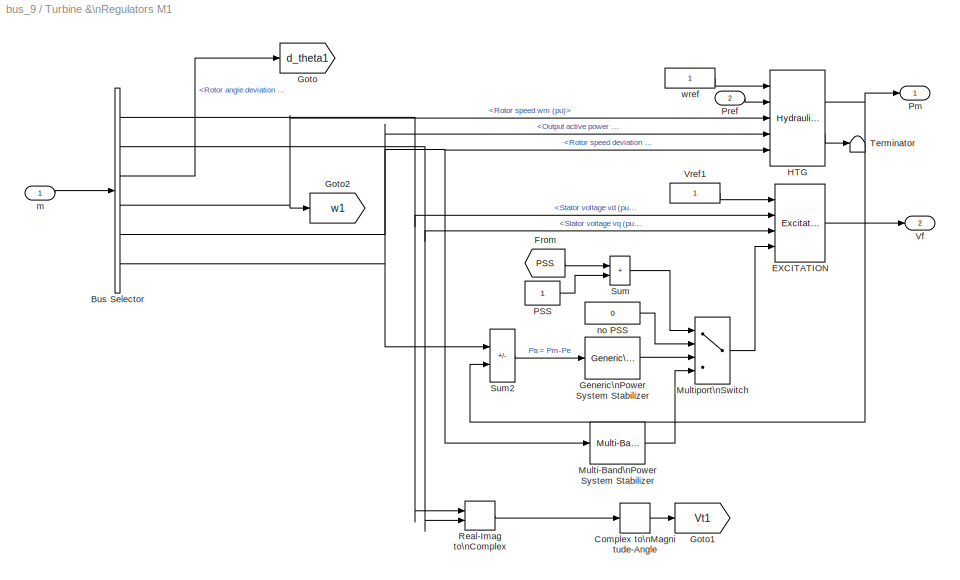
BLOCK [SubSystem] Turbine &\nRegulators M1
  Ports = [2, 2]
  RequestExecContextInheritance = off
  SID = 102
BLOCK [BusSelector] Turbine &\nRegulators M1/Bus Selector
  OutputSignals = dq0 components.Stator voltage  vd (pu),dq0 components.Stator voltage  vq (pu),Mechanical.Rotor angle deviation  d_theta (rad),Mechanical.Rotor speed  wm  (pu),Mechanical.Rotor speed deviation  dw (pu),Output active power   Peo (pu)  <repeated x3 — deduplicated; at blocks: Bus Selector>
  Ports = [1, 6]
  SID = 105
BLOCK [ComplexToMagnitudeAngle] Turbine &\nRegulators M1/Complex to\nMagnitude-Angle
  Output = Magnitude
  Ports = [1, 1]
  SID = 106
BLOCK [Reference] Turbine &\nRegulators M1/EXCITATION  REF=spsExcitationSystemLib/Excitation System
  Ports = [4, 1]
  RTWMemSecDataConstants = Inherit from model
  RTWMemSecDataInternal = Inherit from model
  RTWMemSecDataParameters = Inherit from model
  RTWMemSecFuncExecute = Inherit from model
  RTWMemSecFuncInitTerm = Inherit from model
  SID = 107
  SourceBlock = spsExcitationSystemLib/Excitation System
  SourceProductName = Specialized Power Systems
  SourceType = Excitation System
  damp = [ 0.001, 0.1 ]
  exc = [ 1, 0 ]
  lim = [ 0,  7, 0 ]
  reg = [ 200, 0.001 ]
  sat = [ 0, 0 ]
  tgr = [ 0, 0 ]
  tr = 20e-3
  v0 = [1 1.4817]
BLOCK [From] Turbine &\nRegulators M1/From
  CloseFcn = tagdialog Close
  GotoTag = PSS
  SID = 108
  TagVisibility = global
BLOCK [Reference] Turbine &\nRegulators M1/Generic\nPower System Stabilizer  REF=spsGenericPowerSystemStabilizerLib/Generic\nPower System Stabilizer
  FreqRange = logspace(-2,2,500)
  K = 2
  MagdB_On = on
  Plot_On = off
  Ports = [1, 1]
  RTWMemSecDataConstants = Inherit from model
  RTWMemSecDataInternal = Inherit from model
  RTWMemSecDataParameters = Inherit from model
  RTWMemSecFuncExecute = Inherit from model
  RTWMemSecFuncInitTerm = Inherit from model
  SID = 109
  SourceBlock = spsGenericPowerSystemStabilizerLib/Generic\nPower System Stabilizer
  SourceProductName = Specialized Power Systems
  SourceType = Generic Power System Stabilizer
  Tleadlag1 = [60e-3  0.5]
  Tleadlag2 = [0 0]
  Tsensor = 15e-3
  Twashout = 0.7
  VSlimits = [-0.15 0.15]
  Vinit = 0
BLOCK [Goto] Turbine &\nRegulators M1/Goto
  GotoTag = d_theta1
  SID = 110
  TagVisibility = global
BLOCK [Goto] Turbine &\nRegulators M1/Goto1
  GotoTag = Vt1
  SID = 111
  TagVisibility = global
BLOCK [Goto] Turbine &\nRegulators M1/Goto2
  GotoTag = w1
  SID = 112
  TagVisibility = global
BLOCK [Reference] Turbine &\nRegulators M1/HTG  REF=spsHydraulicTurbineandGovernorLib/Hydraulic Turbine\nand Governor
  Ports = [5, 2]
  RTWMemSecDataConstants = Inherit from model
  RTWMemSecDataInternal = Inherit from model
  RTWMemSecDataParameters = Inherit from model
  RTWMemSecFuncExecute = Inherit from model
  RTWMemSecFuncInitTerm = Inherit from model
  SID = 113
  SourceBlock = spsHydraulicTurbineandGovernorLib/Hydraulic Turbine\nand Governor
  SourceProductName = Specialized Power Systems
  SourceType = Hydraulic Turbine and Governor
  dref = 0
  gate = [  0.01  0.97518  -0.1  0.1 ]
  hyd = [  0  2.67  ]
  po = 0.827
  reg = [  0.05  1.163  0.105  0  0.01  ]
  sm = [ 10/3  0.07 ]
BLOCK [Reference] Turbine &\nRegulators M1/Multi-Band\nPower System Stabilizer  REF=spsMultiBandPowerSystemStabilizerLib/Multi-Band\nPower System Stabilizer
  FreqRange = logspace(-2,2,500)
  GH = [12.0 145]
  GHd = [66 66 233]
  GI = [0.8 25]
  GId = [66 66 47.6]
  GL = [0.025 5]
  GLd = [66 66 9.4]
  Kg = 1.0
  LIM = [.075 .15 .15 .15]
  MagdB_On = off
  OperationMode = Simplified settings
  Plot_On = off
  Ports = [1, 1]
  RTWMemSecDataConstants = Inherit from model
  RTWMemSecDataInternal = Inherit from model
  RTWMemSecDataParameters = Inherit from model
  RTWMemSecFuncExecute = Inherit from model
  RTWMemSecFuncInitTerm = Inherit from model
  SID = 114
  SourceBlock = spsMultiBandPowerSystemStabilizerLib/Multi-Band\nPower System Stabilizer
  SourceProductName = Specialized Power Systems
  SourceType = Multi-Band Power System Stabilizer
  TcHF = [0.01 0.012 0 0 0 0  0.012 0.0144 0 0 0 0 1 1]
  TcIF = [1 1 0.25 0.3 0 0 1 1 0.3 0.36 0 0 0 0]
  TcLF = [1.667 2 0 0 0 0 2 2.4 0 0 0 0 1 1]
BLOCK [MultiPortSwitch] Turbine &\nRegulators M1/Multiport\nSwitch
  InputSameDT = off
  Ports = [4, 1]
  SID = 115
BLOCK [Constant] Turbine &\nRegulators M1/PSS
  SID = 116
BLOCK [Outport] Turbine &\nRegulators M1/Pm
  InitialOutput = 0
  SID = 124
  VectorParamsAs1DForOutWhenUnconnected = off
BLOCK [Inport] Turbine &\nRegulators M1/Pref
  Port = 2
  SID = 104
BLOCK [RealImagToComplex] Turbine &\nRegulators M1/Real-Imag to\nComplex
  Ports = [2, 1]
  SID = 117
BLOCK [Sum] Turbine &\nRegulators M1/Sum
  IconShape = rectangular
  Ports = [2, 1]
  SID = 118
  SaturateOnIntegerOverflow = on
BLOCK [Sum] Turbine &\nRegulators M1/Sum2
  IconShape = rectangular
  InputSameDT = on
  Inputs = -+
  OutDataTypeStr = Inherit: Same as first input
  Ports = [2, 1]
  SID = 119
  SaturateOnIntegerOverflow = on
BLOCK [Terminator] Turbine &\nRegulators M1/Terminator
  SID = 120
BLOCK [Outport] Turbine &\nRegulators M1/Vf
  InitialOutput = 0
  Port = 2
  SID = 125
  VectorParamsAs1DForOutWhenUnconnected = off
BLOCK [Constant] Turbine &\nRegulators M1/Vref1
  SID = 121
BLOCK [Inport] Turbine &\nRegulators M1/m
  SID = 103
BLOCK [Constant] Turbine &\nRegulators M1/no PSS
  SID = 122
  Value = 0
BLOCK [Constant] Turbine &\nRegulators M1/wref
  SID = 123
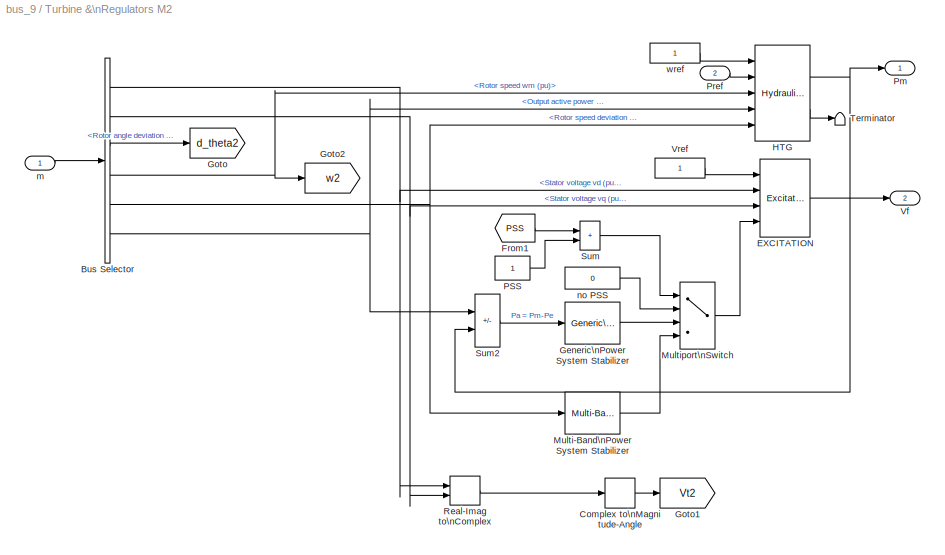
BLOCK [SubSystem] Turbine &\nRegulators M2
  Ports = [2, 2]
  RequestExecContextInheritance = off
  SID = 126
BLOCK [BusSelector] Turbine &\nRegulators M2/Bus Selector
  Ports = [1, 6]
  SID = 129
BLOCK [ComplexToMagnitudeAngle] Turbine &\nRegulators M2/Complex to\nMagnitude-Angle
  Output = Magnitude
  Ports = [1, 1]
  SID = 130
BLOCK [Reference] Turbine &\nRegulators M2/EXCITATION  REF=spsExcitationSystemLib/Excitation System
  Ports = [4, 1]
  RTWMemSecDataConstants = Inherit from model
  RTWMemSecDataInternal = Inherit from model
  RTWMemSecDataParameters = Inherit from model
  RTWMemSecFuncExecute = Inherit from model
  RTWMemSecFuncInitTerm = Inherit from model
  SID = 131
  SourceBlock = spsExcitationSystemLib/Excitation System
  SourceProductName = Specialized Power Systems
  SourceType = Excitation System
  damp = [ 0.001, 0.1 ]
  exc = [ 1, 0 ]
  lim = [ 0,  7, 0 ]
  reg = [ 200, 0.001 ]
  sat = [ 0, 0 ]
  tgr = [ 0, 0 ]
  tr = 20e-3
  v0 = [1 1.3662]
BLOCK [From] Turbine &\nRegulators M2/From1
  CloseFcn = tagdialog Close
  GotoTag = PSS
  SID = 132
  TagVisibility = global
BLOCK [Reference] Turbine &\nRegulators M2/Generic\nPower System Stabilizer  REF=spsGenericPowerSystemStabilizerLib/Generic\nPower System Stabilizer
  FreqRange = logspace(-2,2,500)
  K = 2
  MagdB_On = on
  Plot_On = off
  Ports = [1, 1]
  RTWMemSecDataConstants = Inherit from model
  RTWMemSecDataInternal = Inherit from model
  RTWMemSecDataParameters = Inherit from model
  RTWMemSecFuncExecute = Inherit from model
  RTWMemSecFuncInitTerm = Inherit from model
  SID = 133
  SourceBlock = spsGenericPowerSystemStabilizerLib/Generic\nPower System Stabilizer
  SourceProductName = Specialized Power Systems
  SourceType = Generic Power System Stabilizer
  Tleadlag1 = [60e-3  0.5]
  Tleadlag2 = [0 0]
  Tsensor = 15e-3
  Twashout = 0.7
  VSlimits = [-0.15 0.15]
  Vinit = 0
BLOCK [Goto] Turbine &\nRegulators M2/Goto
  GotoTag = d_theta2
  SID = 134
  TagVisibility = global
BLOCK [Goto] Turbine &\nRegulators M2/Goto1
  GotoTag = Vt2
  SID = 135
  TagVisibility = global
BLOCK [Goto] Turbine &\nRegulators M2/Goto2
  GotoTag = w2
  SID = 136
  TagVisibility = global
BLOCK [Reference] Turbine &\nRegulators M2/HTG  REF=spsHydraulicTurbineandGovernorLib/Hydraulic Turbine\nand Governor
  Ports = [5, 2]
  RTWMemSecDataConstants = Inherit from model
  RTWMemSecDataInternal = Inherit from model
  RTWMemSecDataParameters = Inherit from model
  RTWMemSecFuncExecute = Inherit from model
  RTWMemSecFuncInitTerm = Inherit from model
  SID = 137
  SourceBlock = spsHydraulicTurbineandGovernorLib/Hydraulic Turbine\nand Governor
  SourceProductName = Specialized Power Systems
  SourceType = Hydraulic Turbine and Governor
  dref = 0
  gate = [  0.01  0.97518  -0.1  0.1 ]
  hyd = [  0  2.67  ]
  po = 0.63993
  reg = [  0.05  1.163  0.105  0  0.01  ]
  sm = [ 10/3  0.07 ]
BLOCK [Reference] Turbine &\nRegulators M2/Multi-Band\nPower System Stabilizer  REF=spsMultiBandPowerSystemStabilizerLib/Multi-Band\nPower System Stabilizer
  FreqRange = logspace(-2,2,500)
  GH = [12.0 145]
  GHd = [66 66 233]
  GI = [0.8 25]
  GId = [66 66 47.6]
  GL = [0.025 5]
  GLd = [66 66 9.4]
  Kg = 1.0
  LIM = [.075 .15 .15 .15]
  MagdB_On = off
  OperationMode = Simplified settings
  Plot_On = off
  Ports = [1, 1]
  RTWMemSecDataConstants = Inherit from model
  RTWMemSecDataInternal = Inherit from model
  RTWMemSecDataParameters = Inherit from model
  RTWMemSecFuncExecute = Inherit from model
  RTWMemSecFuncInitTerm = Inherit from model
  SID = 138
  SourceBlock = spsMultiBandPowerSystemStabilizerLib/Multi-Band\nPower System Stabilizer
  SourceProductName = Specialized Power Systems
  SourceType = Multi-Band Power System Stabilizer
  TcHF = [0.01 0.012 0 0 0 0  0.012 0.0144 0 0 0 0 1 1]
  TcIF = [1 1 0.25 0.3 0 0 1 1 0.3 0.36 0 0 0 0]
  TcLF = [1.667 2 0 0 0 0 2 2.4 0 0 0 0 1 1]
BLOCK [MultiPortSwitch] Turbine &\nRegulators M2/Multiport\nSwitch
  InputSameDT = off
  Ports = [4, 1]
  SID = 139
BLOCK [Constant] Turbine &\nRegulators M2/PSS
  SID = 140
BLOCK [Outport] Turbine &\nRegulators M2/Pm
  InitialOutput = 0
  SID = 148
  VectorParamsAs1DForOutWhenUnconnected = off
BLOCK [Inport] Turbine &\nRegulators M2/Pref
  Port = 2
  SID = 128
BLOCK [RealImagToComplex] Turbine &\nRegulators M2/Real-Imag to\nComplex
  Ports = [2, 1]
  SID = 141
BLOCK [Sum] Turbine &\nRegulators M2/Sum
  IconShape = rectangular
  Ports = [2, 1]
  SID = 142
  SaturateOnIntegerOverflow = on
BLOCK [Sum] Turbine &\nRegulators M2/Sum2
  IconShape = rectangular
  InputSameDT = on
  Inputs = -+
  OutDataTypeStr = Inherit: Same as first input
  Ports = [2, 1]
  SID = 143
  SaturateOnIntegerOverflow = on
BLOCK [Terminator] Turbine &\nRegulators M2/Terminator
  SID = 144
BLOCK [Outport] Turbine &\nRegulators M2/Vf
  InitialOutput = 0
  Port = 2
  SID = 149
  VectorParamsAs1DForOutWhenUnconnected = off
BLOCK [Constant] Turbine &\nRegulators M2/Vref
  SID = 145
BLOCK [Inport] Turbine &\nRegulators M2/m
  SID = 127
BLOCK [Constant] Turbine &\nRegulators M2/no PSS
  SID = 146
  Value = 0
BLOCK [Constant] Turbine &\nRegulators M2/wref
  SID = 147
BLOCK [SubSystem] Turbine &\nRegulators M3
  Ports = [2, 2]
  RequestExecContextInheritance = off
  SID = 150
BLOCK [BusSelector] Turbine &\nRegulators M3/Bus Selector
  Ports = [1, 6]
  SID = 153
BLOCK [ComplexToMagnitudeAngle] Turbine &\nRegulators M3/Complex to\nMagnitude-Angle
  Output = Magnitude
  Ports = [1, 1]
  SID = 154
BLOCK [Reference] Turbine &\nRegulators M3/EXCITATION  REF=spsExcitationSystemLib/Excitation System
  Ports = [4, 1]
  RTWMemSecDataConstants = Inherit from model
  RTWMemSecDataInternal = Inherit from model
  RTWMemSecDataParameters = Inherit from model
  RTWMemSecFuncExecute = Inherit from model
  RTWMemSecFuncInitTerm = Inherit from model
  SID = 155
  SourceBlock = spsExcitationSystemLib/Excitation System
  SourceProductName = Specialized Power Systems
  SourceType = Excitation System
  damp = [ 0.001, 0.1 ]
  exc = [ 1, 0 ]
  lim = [ 0,  7, 0 ]
  reg = [ 200, 0.001 ]
  sat = [ 0, 0 ]
  tgr = [ 0, 0 ]
  tr = 20e-3
  v0 = [0.76667 1.0466]
BLOCK [From] Turbine &\nRegulators M3/From
  CloseFcn = tagdialog Close
  GotoTag = PSS
  SID = 156
  TagVisibility = global
BLOCK [Reference] Turbine &\nRegulators M3/Generic\nPower System Stabilizer  REF=spsGenericPowerSystemStabilizerLib/Generic\nPower System Stabilizer
  FreqRange = logspace(-2,2,500)
  K = 2
  MagdB_On = on
  Plot_On = off
  Ports = [1, 1]
  RTWMemSecDataConstants = Inherit from model
  RTWMemSecDataInternal = Inherit from model
  RTWMemSecDataParameters = Inherit from model
  RTWMemSecFuncExecute = Inherit from model
  RTWMemSecFuncInitTerm = Inherit from model
  SID = 157
  SourceBlock = spsGenericPowerSystemStabilizerLib/Generic\nPower System Stabilizer
  SourceProductName = Specialized Power Systems
  SourceType = Generic Power System Stabilizer
  Tleadlag1 = [60e-3  0.5]
  Tleadlag2 = [0 0]
  Tsensor = 15e-3
  Twashout = 0.7
  VSlimits = [-0.15 0.15]
  Vinit = 0
BLOCK [Goto] Turbine &\nRegulators M3/Goto
  GotoTag = d_theta3
  SID = 158
  TagVisibility = global
BLOCK [Goto] Turbine &\nRegulators M3/Goto1
  GotoTag = Vt3
  SID = 159
  TagVisibility = global
BLOCK [Goto] Turbine &\nRegulators M3/Goto2
  GotoTag = w3
  SID = 160
  TagVisibility = global
BLOCK [Reference] Turbine &\nRegulators M3/HTG  REF=spsHydraulicTurbineandGovernorLib/Hydraulic Turbine\nand Governor
  Ports = [5, 2]
  RTWMemSecDataConstants = Inherit from model
  RTWMemSecDataInternal = Inherit from model
  RTWMemSecDataParameters = Inherit from model
  RTWMemSecFuncExecute = Inherit from model
  RTWMemSecFuncInitTerm = Inherit from model
  SID = 161
  SourceBlock = spsHydraulicTurbineandGovernorLib/Hydraulic Turbine\nand Governor
  SourceProductName = Specialized Power Systems
  SourceType = Hydraulic Turbine and Governor
  dref = 0
  gate = [  0.01  0.97518  -0.1  0.1 ]
  hyd = [  0  2.67  ]
  po = 0.42589
  reg = [  0.05  1.163  0.105  0  0.01  ]
  sm = [ 10/3  0.07 ]
BLOCK [Reference] Turbine &\nRegulators M3/Multi-Band\nPower System Stabilizer  REF=spsMultiBandPowerSystemStabilizerLib/Multi-Band\nPower System Stabilizer
  FreqRange = logspace(-2,2,500)
  GH = [12.0 145]
  GHd = [66 66 233]
  GI = [0.8 25]
  GId = [66 66 47.6]
  GL = [0.025 5]
  GLd = [66 66 9.4]
  Kg = 1.0
  LIM = [.075 .15 .15 .15]
  MagdB_On = off
  OperationMode = Simplified settings
  Plot_On = off
  Ports = [1, 1]
  RTWMemSecDataConstants = Inherit from model
  RTWMemSecDataInternal = Inherit from model
  RTWMemSecDataParameters = Inherit from model
  RTWMemSecFuncExecute = Inherit from model
  RTWMemSecFuncInitTerm = Inherit from model
  SID = 162
  SourceBlock = spsMultiBandPowerSystemStabilizerLib/Multi-Band\nPower System Stabilizer
  SourceProductName = Specialized Power Systems
  SourceType = Multi-Band Power System Stabilizer
  TcHF = [0.01 0.012 0 0 0 0  0.012 0.0144 0 0 0 0 1 1]
  TcIF = [1 1 0.25 0.3 0 0 1 1 0.3 0.36 0 0 0 0]
  TcLF = [1.667 2 0 0 0 0 2 2.4 0 0 0 0 1 1]
BLOCK [MultiPortSwitch] Turbine &\nRegulators M3/Multiport\nSwitch
  InputSameDT = off
  Ports = [4, 1]
  SID = 163
BLOCK [Constant] Turbine &\nRegulators M3/PSS
  SID = 164
BLOCK [Outport] Turbine &\nRegulators M3/Pm
  InitialOutput = 0
  SID = 172
  VectorParamsAs1DForOutWhenUnconnected = off
BLOCK [Inport] Turbine &\nRegulators M3/Pref
  Port = 2
  SID = 152
BLOCK [RealImagToComplex] Turbine &\nRegulators M3/Real-Imag to\nComplex
  Ports = [2, 1]
  SID = 165
BLOCK [Sum] Turbine &\nRegulators M3/Sum
  IconShape = rectangular
  Ports = [2, 1]
  SID = 166
  SaturateOnIntegerOverflow = on
BLOCK [Sum] Turbine &\nRegulators M3/Sum2
  IconShape = rectangular
  InputSameDT = on
  Inputs = -+
  OutDataTypeStr = Inherit: Same as first input
  Ports = [2, 1]
  SID = 167
  SaturateOnIntegerOverflow = on
BLOCK [Terminator] Turbine &\nRegulators M3/Terminator
  SID = 168
BLOCK [Outport] Turbine &\nRegulators M3/Vf
  InitialOutput = 0
  Port = 2
  SID = 173
  VectorParamsAs1DForOutWhenUnconnected = off
BLOCK [Constant] Turbine &\nRegulators M3/Vref1
  SID = 169
  Value = 0.76667
BLOCK [Inport] Turbine &\nRegulators M3/m
  SID = 151
BLOCK [Constant] Turbine &\nRegulators M3/no PSS
  SID = 170
  Value = 0
BLOCK [Constant] Turbine &\nRegulators M3/wref
  SID = 171
BLOCK [Mux] observation_mux
  DisplayOption = bar
  Inputs = 6
  Ports = [6, 1]
  SID = 209
BLOCK [Mux] output_mux
  DisplayOption = bar
  Inputs = 2
  Ports = [2, 1]
  SID = 212
BLOCK [Reference] powergui  REF=spspowerguiLib/powergui
  AutomaticDiscreteSolvers = off
  ContinueOnMaxIteration = off
  CurrentSourceSwitches = off
  DisableRonSwitches = off
  DisableSnubberDevices = off
  DisableVfSwitches = off
  DisplayEquations = off
  DisplayStyle = 1
  EnableUseOfTLC = off
  ErrMax = 0.0001
  ExternalGateDelay = off
  Frange = [0:2:500]
  FreqAxis = off
  FunctionMessages = off
  HookPort = off
  Interpol = off
  Iterations = 50
  MaxFrequency = 1000
  NonlinearTolerance = 1e-4
  Pbase = 200
  Ports = []
  Priority = 1
  RTWMemSecDataConstants = Inherit from model
  RTWMemSecDataInternal = Inherit from model
  RTWMemSecDataParameters = Inherit from model
  RTWMemSecFuncExecute = Inherit from model
  RTWMemSecFuncInitTerm = Inherit from model
  ResistiveCurrentMeasurement = off
  RestoreLinks = warning
  RmsSteady = 1
  SID = 174
  SPID = on
  SampleTime = 50e-5
  ShowGrid = off
  SolverType = Backward Euler
  SourceBlock = spspowerguiLib/powergui
  SourceProductBaseCode = PS
  SourceType = PSB option menu block
  StartTime = 0.0
  SwTol = 0
  Ts = 100
  UnitsV = kV
  UnitsW = MW
  Xlog = on
  Ylog = off
  ZoomFFT = off
  buscounter = 0
  cycles = 1
  display = off
  echomessages = off
  frequency = 60
  frequencyindice = 60
  frequencyindicesteady = 1
  fundamental = 60
  methode = off
  nMaxIteration = 100
  save = off
  structure = 0
  variable = ZData
  x0status = blocks
LINE Bus\nCreator1:1 -> Kalman Filter:1
LINE Bus\nCreator2:1 -> Kalman Filter1:1
LINE Bus\nCreator3:1 -> Kalman Filter2:1
NET Bus\nSelector1:1 -> Fcn1:1, PID Controller4:1
NET Bus\nSelector2:1 -> Fcn2:1, PID Controller3:1
NET Bus\nSelector:1 -> Fcn3:1, PID Controller1:1
LINE Constant10:1 -> Matrix Multiply2:1
LINE Constant11:1 -> Matrix Multiply3:1
LINE Constant12:1 -> Kalman Filter2:3
LINE Constant13:1 -> Kalman Filter2:4
LINE Constant14:1 -> Kalman Filter2:5
LINE Constant1:1 -> Sum:1
LINE Constant2:1 -> Sum2:1
LINE Constant3:1 -> Kalman Filter1:3
LINE Constant4:1 -> Kalman Filter1:4
LINE Constant5:1 -> Kalman Filter1:5
LINE Constant6:1 -> Kalman Filter:3
LINE Constant7:1 -> Kalman Filter:4
LINE Constant8:1 -> Kalman Filter:5
LINE Constant9:1 -> Matrix Multiply1:1
LINE Constant:1 -> Sum1:2
LINE Demux:1 -> Goto1:1
LINE Demux:2 -> Goto2:1
NET Fcn1:1 -> Goto5:1, Scope3:1
NET Fcn2:1 -> Goto6:1, Scope5:1
NET Fcn3:1 -> Goto4:1, Scope1:1
LINE From1:1 -> Three-Phase Breaker1:1
LINE From2:1 -> Three-Phase Breaker:1
LINE From3:1 -> Sum:3
NET From4:1 -> observation_mux:1, output_mux:1
LINE From5:1 -> observation_mux:2
LINE From6:1 -> observation_mux:3
NET From7:1 -> observation_mux:4, output_mux:2
LINE From8:1 -> observation_mux:5
LINE From9:1 -> observation_mux:6
LINE From:1 -> PMU\n(PLL-Based,\nPositive-Sequence):1
LINE Inport1:1 -> Demux:1
LINE Kalman Filter1:1 -> Matrix Multiply2:2
LINE Kalman Filter2:1 -> Matrix Multiply3:2
LINE Kalman Filter:1 -> Matrix Multiply1:2
NET M1 200 MVA1:1 -> Bus\nSelector2:1, Kalman Filter2:2, Subtract3:1, Turbine &\nRegulators M3:1
NET M1 200 MVA:1 -> Bus\nSelector:1, Kalman Filter:2, Subtract1:1, Turbine &\nRegulators M1:1
NET M2 200 MVA 16.5 kV:1 -> Bus\nSelector1:1, Kalman Filter1:2, Subtract2:1, Turbine &\nRegulators M2:1
LINE MATLAB Function1/ Demux :1 -> MATLAB Function1/ Terminator :1
LINE MATLAB Function1/ SFunction :1 -> MATLAB Function1/ Demux :1
LINE MATLAB Function1/ SFunction :2 -> MATLAB Function1/y:1
LINE MATLAB Function1/u:1 -> MATLAB Function1/ SFunction :1
NET MATLAB Function1:1 -> Display:1, Goto7:1, Scope8:1
LINE MATLAB Function2/ Demux :1 -> MATLAB Function2/ Terminator :1
LINE MATLAB Function2/ SFunction :1 -> MATLAB Function2/ Demux :1
LINE MATLAB Function2/ SFunction :2 -> MATLAB Function2/y:1
LINE MATLAB Function2/u:1 -> MATLAB Function2/ SFunction :1
NET MATLAB Function2:1 -> Display1:1, Goto8:1, Scope2:1
LINE MATLAB Function3/ Demux :1 -> MATLAB Function3/ Terminator :1
LINE MATLAB Function3/ SFunction :1 -> MATLAB Function3/ Demux :1
LINE MATLAB Function3/ SFunction :2 -> MATLAB Function3/y:1
LINE MATLAB Function3/u:1 -> MATLAB Function3/ SFunction :1
NET MATLAB Function3:1 -> Display2:1, Goto9:1, Scope4:1
LINE Matrix Multiply1:1 -> Subtract1:2
LINE Matrix Multiply2:1 -> Subtract2:2
LINE Matrix Multiply3:1 -> Subtract3:2
LINE PID Controller1:1 -> Sum:2
LINE PID Controller3:1 -> Sum2:2
LINE PID Controller4:1 -> Sum1:1
LINE PMU\n(PLL-Based,\nPositive-Sequence):1 -> Scope:1
LINE PMU\n(PLL-Based,\nPositive-Sequence):2 -> Scope:2
LINE PMU\n(PLL-Based,\nPositive-Sequence):3 -> Scope:3
LINE PSS selector1:1 -> Goto:1
LINE PSS selector:1 -> PSS selector1:1
LINE Subsystem/cte1:1 -> Subsystem/Generic:1
LINE Subsystem/cte2:1 -> Subsystem/Multiband:1
LINE Subsystem/cte3:1 -> Subsystem/No PSS:1
LINE Subsystem:1 -> PSS selector:1
LINE Subsystem:2 -> PSS selector:2
LINE Subsystem:3 -> PSS selector1:2
LINE Subtract1:1 -> MATLAB Function1:1
LINE Subtract2:1 -> MATLAB Function2:1
LINE Subtract3:1 -> MATLAB Function3:1
LINE Sum1:1 -> Turbine &\nRegulators M2:2
LINE Sum2:1 -> Turbine &\nRegulators M3:2
LINE Sum:1 -> Turbine &\nRegulators M1:2
LINE Three-Phase\nV-I Measurement:1 -> Scope6:1
NET Turbine &\nRegulators M1/Bus Selector:1 -> Turbine &\nRegulators M1/EXCITATION:2, Turbine &\nRegulators M1/Real-Imag to\nComplex:1
NET Turbine &\nRegulators M1/Bus Selector:2 -> Turbine &\nRegulators M1/EXCITATION:3, Turbine &\nRegulators M1/Real-Imag to\nComplex:2
LINE Turbine &\nRegulators M1/Bus Selector:3 -> Turbine &\nRegulators M1/Goto:1
NET Turbine &\nRegulators M1/Bus Selector:4 -> Turbine &\nRegulators M1/Goto2:1, Turbine &\nRegulators M1/HTG:3
NET Turbine &\nRegulators M1/Bus Selector:5 -> Turbine &\nRegulators M1/HTG:5, Turbine &\nRegulators M1/Multi-Band\nPower System Stabilizer:1
NET Turbine &\nRegulators M1/Bus Selector:6 -> Turbine &\nRegulators M1/HTG:4, Turbine &\nRegulators M1/Sum2:1
LINE Turbine &\nRegulators M1/Complex to\nMagnitude-Angle:1 -> Turbine &\nRegulators M1/Goto1:1
LINE Turbine &\nRegulators M1/EXCITATION:1 -> Turbine &\nRegulators M1/Vf:1
LINE Turbine &\nRegulators M1/From:1 -> Turbine &\nRegulators M1/Sum:1
LINE Turbine &\nRegulators M1/Generic\nPower System Stabilizer:1 -> Turbine &\nRegulators M1/Multiport\nSwitch:3
NET Turbine &\nRegulators M1/HTG:1 -> Turbine &\nRegulators M1/Pm:1, Turbine &\nRegulators M1/Sum2:2
LINE Turbine &\nRegulators M1/HTG:2 -> Turbine &\nRegulators M1/Terminator:1
LINE Turbine &\nRegulators M1/Multi-Band\nPower System Stabilizer:1 -> Turbine &\nRegulators M1/Multiport\nSwitch:4
LINE Turbine &\nRegulators M1/Multiport\nSwitch:1 -> Turbine &\nRegulators M1/EXCITATION:4
LINE Turbine &\nRegulators M1/PSS:1 -> Turbine &\nRegulators M1/Sum:2
LINE Turbine &\nRegulators M1/Pref:1 -> Turbine &\nRegulators M1/HTG:2
LINE Turbine &\nRegulators M1/Real-Imag to\nComplex:1 -> Turbine &\nRegulators M1/Complex to\nMagnitude-Angle:1
LINE Turbine &\nRegulators M1/Sum2:1 -> Turbine &\nRegulators M1/Generic\nPower System Stabilizer:1
LINE Turbine &\nRegulators M1/Sum:1 -> Turbine &\nRegulators M1/Multiport\nSwitch:1
LINE Turbine &\nRegulators M1/Vref1:1 -> Turbine &\nRegulators M1/EXCITATION:1
LINE Turbine &\nRegulators M1/m:1 -> Turbine &\nRegulators M1/Bus Selector:1
LINE Turbine &\nRegulators M1/no PSS:1 -> Turbine &\nRegulators M1/Multiport\nSwitch:2
LINE Turbine &\nRegulators M1/wref:1 -> Turbine &\nRegulators M1/HTG:1
NET Turbine &\nRegulators M1:1 -> Bus\nCreator1:1, M1 200 MVA:1
NET Turbine &\nRegulators M1:2 -> Bus\nCreator1:2, M1 200 MVA:2
NET Turbine &\nRegulators M2/Bus Selector:1 -> Turbine &\nRegulators M2/EXCITATION:2, Turbine &\nRegulators M2/Real-Imag to\nComplex:1
NET Turbine &\nRegulators M2/Bus Selector:2 -> Turbine &\nRegulators M2/EXCITATION:3, Turbine &\nRegulators M2/Real-Imag to\nComplex:2
LINE Turbine &\nRegulators M2/Bus Selector:3 -> Turbine &\nRegulators M2/Goto:1
NET Turbine &\nRegulators M2/Bus Selector:4 -> Turbine &\nRegulators M2/Goto2:1, Turbine &\nRegulators M2/HTG:3
NET Turbine &\nRegulators M2/Bus Selector:5 -> Turbine &\nRegulators M2/HTG:5, Turbine &\nRegulators M2/Multi-Band\nPower System Stabilizer:1
NET Turbine &\nRegulators M2/Bus Selector:6 -> Turbine &\nRegulators M2/HTG:4, Turbine &\nRegulators M2/Sum2:1
LINE Turbine &\nRegulators M2/Complex to\nMagnitude-Angle:1 -> Turbine &\nRegulators M2/Goto1:1
LINE Turbine &\nRegulators M2/EXCITATION:1 -> Turbine &\nRegulators M2/Vf:1
LINE Turbine &\nRegulators M2/From1:1 -> Turbine &\nRegulators M2/Sum:1
LINE Turbine &\nRegulators M2/Generic\nPower System Stabilizer:1 -> Turbine &\nRegulators M2/Multiport\nSwitch:3
NET Turbine &\nRegulators M2/HTG:1 -> Turbine &\nRegulators M2/Pm:1, Turbine &\nRegulators M2/Sum2:2
LINE Turbine &\nRegulators M2/HTG:2 -> Turbine &\nRegulators M2/Terminator:1
LINE Turbine &\nRegulators M2/Multi-Band\nPower System Stabilizer:1 -> Turbine &\nRegulators M2/Multiport\nSwitch:4
LINE Turbine &\nRegulators M2/Multiport\nSwitch:1 -> Turbine &\nRegulators M2/EXCITATION:4
LINE Turbine &\nRegulators M2/PSS:1 -> Turbine &\nRegulators M2/Sum:2
LINE Turbine &\nRegulators M2/Pref:1 -> Turbine &\nRegulators M2/HTG:2
LINE Turbine &\nRegulators M2/Real-Imag to\nComplex:1 -> Turbine &\nRegulators M2/Complex to\nMagnitude-Angle:1
LINE Turbine &\nRegulators M2/Sum2:1 -> Turbine &\nRegulators M2/Generic\nPower System Stabilizer:1
LINE Turbine &\nRegulators M2/Sum:1 -> Turbine &\nRegulators M2/Multiport\nSwitch:1
LINE Turbine &\nRegulators M2/Vref:1 -> Turbine &\nRegulators M2/EXCITATION:1
LINE Turbine &\nRegulators M2/m:1 -> Turbine &\nRegulators M2/Bus Selector:1
LINE Turbine &\nRegulators M2/no PSS:1 -> Turbine &\nRegulators M2/Multiport\nSwitch:2
LINE Turbine &\nRegulators M2/wref:1 -> Turbine &\nRegulators M2/HTG:1
NET Turbine &\nRegulators M2:1 -> Bus\nCreator2:1, M2 200 MVA 16.5 kV:1
NET Turbine &\nRegulators M2:2 -> Bus\nCreator2:2, M2 200 MVA 16.5 kV:2
NET Turbine &\nRegulators M3/Bus Selector:1 -> Turbine &\nRegulators M3/EXCITATION:2, Turbine &\nRegulators M3/Real-Imag to\nComplex:1
NET Turbine &\nRegulators M3/Bus Selector:2 -> Turbine &\nRegulators M3/EXCITATION:3, Turbine &\nRegulators M3/Real-Imag to\nComplex:2
LINE Turbine &\nRegulators M3/Bus Selector:3 -> Turbine &\nRegulators M3/Goto:1
NET Turbine &\nRegulators M3/Bus Selector:4 -> Turbine &\nRegulators M3/Goto2:1, Turbine &\nRegulators M3/HTG:3
NET Turbine &\nRegulators M3/Bus Selector:5 -> Turbine &\nRegulators M3/HTG:5, Turbine &\nRegulators M3/Multi-Band\nPower System Stabilizer:1
NET Turbine &\nRegulators M3/Bus Selector:6 -> Turbine &\nRegulators M3/HTG:4, Turbine &\nRegulators M3/Sum2:1
LINE Turbine &\nRegulators M3/Complex to\nMagnitude-Angle:1 -> Turbine &\nRegulators M3/Goto1:1
LINE Turbine &\nRegulators M3/EXCITATION:1 -> Turbine &\nRegulators M3/Vf:1
LINE Turbine &\nRegulators M3/From:1 -> Turbine &\nRegulators M3/Sum:1
LINE Turbine &\nRegulators M3/Generic\nPower System Stabilizer:1 -> Turbine &\nRegulators M3/Multiport\nSwitch:3
NET Turbine &\nRegulators M3/HTG:1 -> Turbine &\nRegulators M3/Pm:1, Turbine &\nRegulators M3/Sum2:2
LINE Turbine &\nRegulators M3/HTG:2 -> Turbine &\nRegulators M3/Terminator:1
LINE Turbine &\nRegulators M3/Multi-Band\nPower System Stabilizer:1 -> Turbine &\nRegulators M3/Multiport\nSwitch:4
LINE Turbine &\nRegulators M3/Multiport\nSwitch:1 -> Turbine &\nRegulators M3/EXCITATION:4
LINE Turbine &\nRegulators M3/PSS:1 -> Turbine &\nRegulators M3/Sum:2
LINE Turbine &\nRegulators M3/Pref:1 -> Turbine &\nRegulators M3/HTG:2
LINE Turbine &\nRegulators M3/Real-Imag to\nComplex:1 -> Turbine &\nRegulators M3/Complex to\nMagnitude-Angle:1
LINE Turbine &\nRegulators M3/Sum2:1 -> Turbine &\nRegulators M3/Generic\nPower System Stabilizer:1
LINE Turbine &\nRegulators M3/Sum:1 -> Turbine &\nRegulators M3/Multiport\nSwitch:1
LINE Turbine &\nRegulators M3/Vref1:1 -> Turbine &\nRegulators M3/EXCITATION:1
LINE Turbine &\nRegulators M3/m:1 -> Turbine &\nRegulators M3/Bus Selector:1
LINE Turbine &\nRegulators M3/no PSS:1 -> Turbine &\nRegulators M3/Multiport\nSwitch:2
LINE Turbine &\nRegulators M3/wref:1 -> Turbine &\nRegulators M3/HTG:1
NET Turbine &\nRegulators M3:1 -> Bus\nCreator3:1, M1 200 MVA1:1
NET Turbine &\nRegulators M3:2 -> Bus\nCreator3:2, M1 200 MVA1:2
LINE observation_mux:1 -> Outport:1
LINE output_mux:1 -> Outport1:1
PNET net1: 100 MW 35 MVAR 230 kV:LConn1 -- Load Flow Bus6:LConn1 -- Three-Phase\nPI Section Line1:LConn1 -- Three-Phase\nPI Section Line:RConn1
PNET net2: 100 MW 35 MVAR 230 kV:LConn2 -- Three-Phase\nPI Section Line1:LConn2 -- Three-Phase\nPI Section Line:RConn2
PNET net3: 100 MW 35 MVAR 230 kV:LConn3 -- Three-Phase\nPI Section Line1:LConn3 -- Three-Phase\nPI Section Line:RConn3
PNET net4: 13.8 kv // 230 kv 100 MVA:LConn1 -- Load Flow Bus:LConn1 -- M1 200 MVA1:RConn1 -- Three-Phase\nParallel RLC Load2:LConn1
PNET net5: 13.8 kv // 230 kv 100 MVA:LConn2 -- M1 200 MVA1:RConn2 -- Three-Phase\nParallel RLC Load2:LConn2
PNET net6: 13.8 kv // 230 kv 100 MVA:LConn3 -- M1 200 MVA1:RConn3 -- Three-Phase\nParallel RLC Load2:LConn3
PNET net7: 13.8 kv // 230 kv 100 MVA:RConn1 -- Load Flow Bus7:LConn1 -- Three-Phase\nPI Section Line1:RConn1 -- Three-Phase\nPI Section Line4:LConn1
PNET net8: 13.8 kv // 230 kv 100 MVA:RConn2 -- Three-Phase\nPI Section Line1:RConn2 -- Three-Phase\nPI Section Line4:LConn2
PNET net9: 13.8 kv // 230 kv 100 MVA:RConn3 -- Three-Phase\nPI Section Line1:RConn3 -- Three-Phase\nPI Section Line4:LConn3
PLINE 135 MW 50 MVAR 230 kV:LConn1 -- Three-Phase Breaker1:LConn1
PLINE 135 MW 50 MVAR 230 kV:LConn2 -- Three-Phase Breaker1:LConn2
PLINE 135 MW 50 MVAR 230 kV:LConn3 -- Three-Phase Breaker1:LConn3
PNET net10: 16.5 kV// 230 kV:LConn1 -- Load Flow Bus2:LConn1 -- M2 200 MVA 16.5 kV:RConn1 -- Three-Phase\nParallel RLC Load:LConn1
PNET net11: 16.5 kV// 230 kV:LConn2 -- M2 200 MVA 16.5 kV:RConn2 -- Three-Phase\nParallel RLC Load:LConn2
PNET net12: 16.5 kV// 230 kV:LConn3 -- M2 200 MVA 16.5 kV:RConn3 -- Three-Phase\nParallel RLC Load:LConn3
PNET net13: 16.5 kV// 230 kV:RConn1 -- Load Flow Bus3:LConn1 -- Three-Phase\nPI Section Line3:RConn1 -- Three-Phase\nPI Section Line5:RConn1
PNET net14: 16.5 kV// 230 kV:RConn2 -- Three-Phase\nPI Section Line3:RConn2 -- Three-Phase\nPI Section Line5:RConn2
PNET net15: 16.5 kV// 230 kV:RConn3 -- Three-Phase\nPI Section Line3:RConn3 -- Three-Phase\nPI Section Line5:RConn3
PNET net16: 18 kv // 230 kV 200 MVA:LConn1 -- Load Flow Bus1:LConn1 -- M1 200 MVA:RConn1 -- Three-Phase\nParallel RLC Load1:LConn1
PNET net17: 18 kv // 230 kV 200 MVA:LConn2 -- M1 200 MVA:RConn2 -- Three-Phase\nParallel RLC Load1:LConn2
PNET net18: 18 kv // 230 kV 200 MVA:LConn3 -- M1 200 MVA:RConn3 -- Three-Phase\nParallel RLC Load1:LConn3
PLINE 18 kv // 230 kV 200 MVA:RConn1 -- Three-Phase\nV-I Measurement1:LConn1
PLINE 18 kv // 230 kV 200 MVA:RConn2 -- Three-Phase\nV-I Measurement1:LConn2
PLINE 18 kv // 230 kV 200 MVA:RConn3 -- Three-Phase\nV-I Measurement1:LConn3
PNET net19: 50 MW 230 kV:LConn1 -- Load Flow Bus8:LConn1 -- Three-Phase\nPI Section Line4:RConn1 -- Three-Phase\nV-I Measurement2:RConn1
PNET net20: 50 MW 230 kV:LConn2 -- Three-Phase\nPI Section Line4:RConn2 -- Three-Phase\nV-I Measurement2:RConn2
PNET net21: 50 MW 230 kV:LConn3 -- Three-Phase\nPI Section Line4:RConn3 -- Three-Phase\nV-I Measurement2:RConn3
PNET net22: 90 MW 30 MVAR 230 kV:LConn1 -- Three-Phase Breaker:RConn1 -- Three-Phase\nV-I Measurement:RConn1
PNET net23: 90 MW 30 MVAR 230 kV:LConn2 -- Three-Phase Breaker:RConn2 -- Three-Phase\nV-I Measurement:RConn2
PNET net24: 90 MW 30 MVAR 230 kV:LConn3 -- Three-Phase Breaker:RConn3 -- Three-Phase\nV-I Measurement:RConn3
PNET net25: Load Flow Bus4:LConn1 -- Three-Phase Breaker1:RConn1 -- Three-Phase\nPI Section Line2:RConn1 -- Three-Phase\nPI Section Line3:LConn1
PNET net26: Load Flow Bus5:LConn1 -- Three-Phase\nPI Section Line2:LConn1 -- Three-Phase\nPI Section Line:LConn1 -- Three-Phase\nV-I Measurement1:RConn1
PNET net27: Three-Phase Breaker1:RConn2 -- Three-Phase\nPI Section Line2:RConn2 -- Three-Phase\nPI Section Line3:LConn2
PNET net28: Three-Phase Breaker1:RConn3 -- Three-Phase\nPI Section Line2:RConn3 -- Three-Phase\nPI Section Line3:LConn3
PNET net29: Three-Phase Breaker:LConn1 -- Three-Phase\nPI Section Line5:LConn1 -- Three-Phase\nV-I Measurement2:LConn1
PNET net30: Three-Phase Breaker:LConn2 -- Three-Phase\nPI Section Line5:LConn2 -- Three-Phase\nV-I Measurement2:LConn2
PNET net31: Three-Phase Breaker:LConn3 -- Three-Phase\nPI Section Line5:LConn3 -- Three-Phase\nV-I Measurement2:LConn3
PNET net32: Three-Phase\nPI Section Line2:LConn2 -- Three-Phase\nPI Section Line:LConn2 -- Three-Phase\nV-I Measurement1:RConn2
PNET net33: Three-Phase\nPI Section Line2:LConn3 -- Three-Phase\nPI Section Line:LConn3 -- Three-Phase\nV-I Measurement1:RConn3
note: NET lines group one-source signal fan-out (src -> all destinations, sorted); 1:1 wires keep LINE; PNET lines group multi-terminal physical nets as a canonical sorted terminal list (undirected conserving connections); 2-terminal nets keep the pairwise PLINE form
CHART MATLAB Function1 states=1 transitions=1
  STATE_LABEL 'eML_blk_kernel()'
CHART MATLAB Function2 states=1 transitions=1
  STATE_LABEL 'eML_blk_kernel()'
CHART MATLAB Function3 states=1 transitions=1
  STATE_LABEL 'eML_blk_kernel()'
